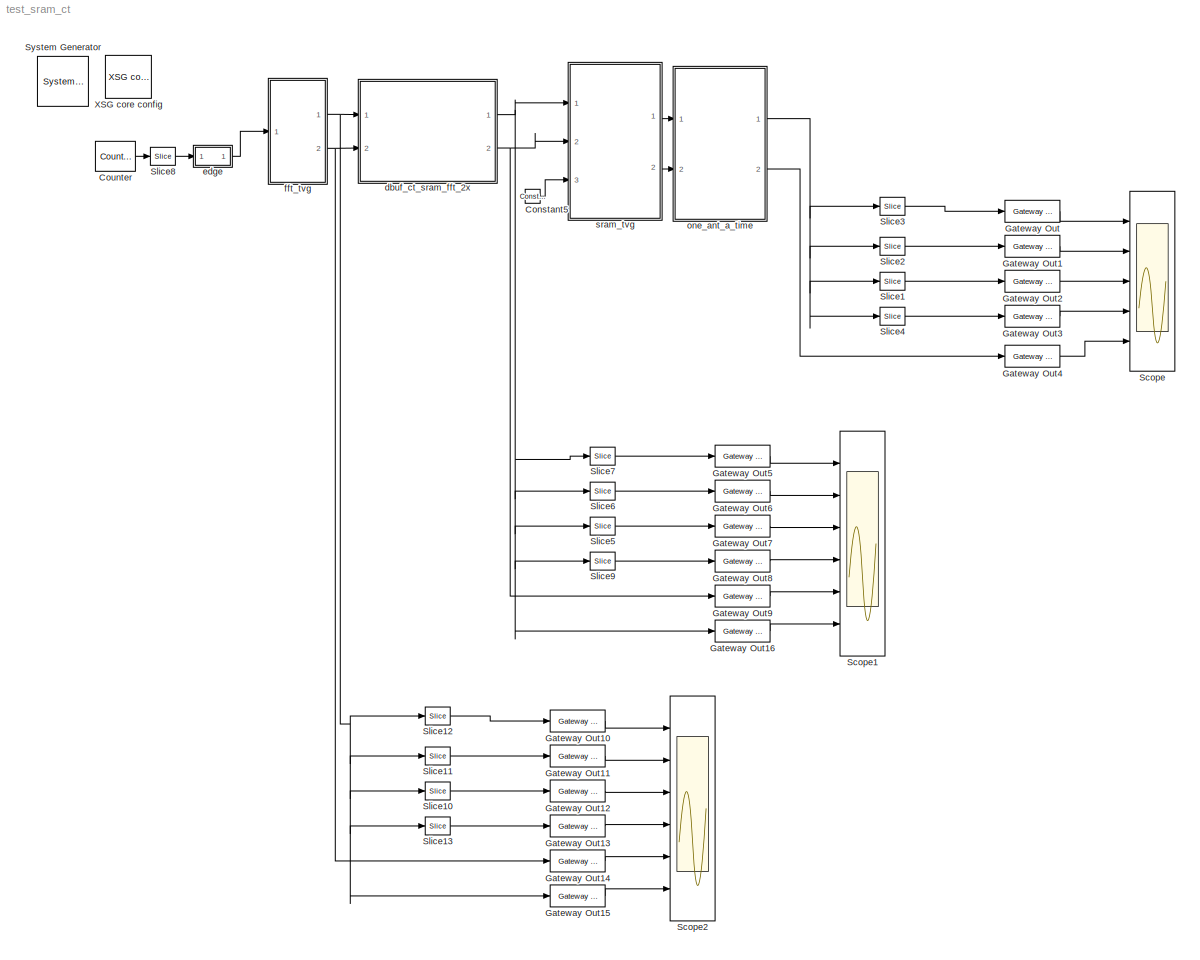
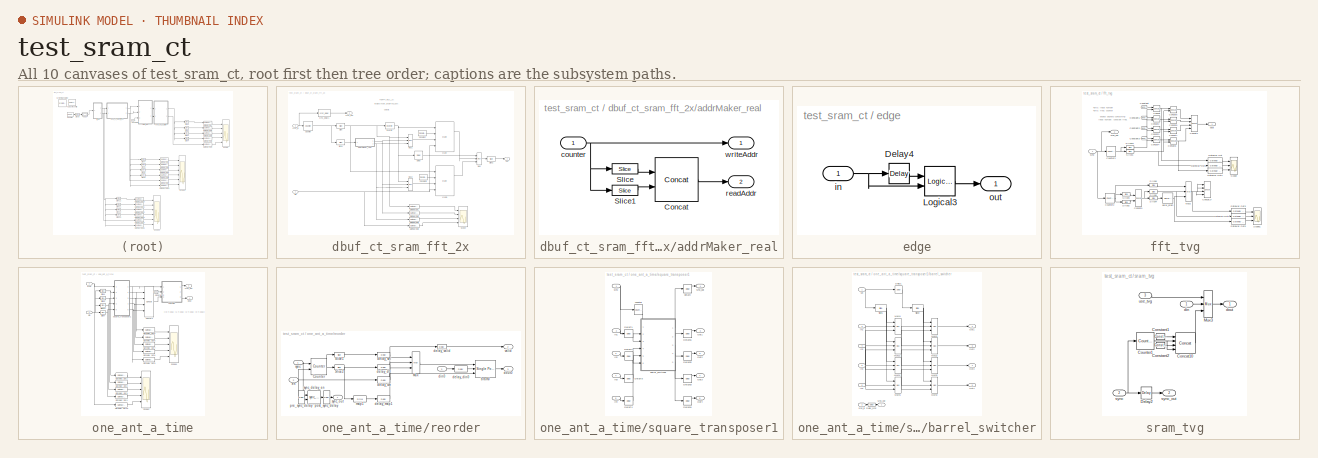
[diagram: thumbnail index - all 10 canvases of the model, root first then tree order]
MODEL test_sram_ct
KIND model
BLOCK [Reference]  System Generator  REF=xbsIndex_r4/ System Generator
  AttributesFormatString = System\\nGenerator
  FunctionWithSeparateData = off
  Ports = []
  RTWMemSecDataConstants = Inherit from model
  RTWMemSecDataInternal = Inherit from model
  RTWMemSecDataParameters = Inherit from model
  RTWMemSecFuncExecute = Inherit from model
  RTWMemSecFuncInitTerm = Inherit from model
  ShowPortLabels = FromPortIcon
  SourceBlock = xbsIndex_r4/ System Generator
  SourceType = Xilinx System Generator Block
  SystemSampleTime = -1
  Tag = genX
  UserData = DataTag0
  UserDataPersistent = on
  block_type = sysgen
  block_version = 10.1.3
  clock_wrapper = Clock Enables
  core_generation = According to Block Masks
  dbl_ovrd = According to Block Masks
  dcm_input_clock_period = 100
  deprecated_control = off
  directory = ./i_128w_2k_10_r306/sysgen
  eval_field = 0
  has_advanced_control = 0
  incr_netlist = off
  infoedit = System Generator
  package = ff1152
  part = xc2vp50
  run_coregen = off
  sg_icon_stat = 51,50,-1,-1,red,beige,0,07734,right
  sg_mask_display = fprintf('','COMMENT: begin icon graphics');\npatch([0 51 51 0 ],[0 0 50 50 ],[0.93 0.92 0.86]);\npatch([12 4 16 4 12 25 29 33 47 36 25 17 29 17 25 36 47 33 29 25 12 ],[5 13 25 37 45 45 41 45 45 34 45 37 25 13 5 16 5 5 9 5 5 ],[0.6 0.2 0.25]);\nplot([0 51 51 0 0 ],[0 0 50 50 0 ]);\nfprintf('','COMMENT: end icon graphics');\nfprintf('','COMMENT: begin icon text');\nfprintf('','COMMENT: end icon text...<+5ch>
  sggui_pos = -1,-1,-1,-1
  simulink_period = 1
  speed = -7
  synthesis_tool = XST
  sysclk_period = 5
  testbench = off
  trim_vbits = Everywhere in SubSystem
  xilinxfamily = virtex2p
BLOCK [Reference] Constant5  REF=xbsIndex_r4/Constant
  Ports = [0, 1]
  SourceBlock = xbsIndex_r4/Constant
  SourceType = Xilinx Constant Block Block
  arith_type = Boolean
  bin_pt = 0
  block_type = constant
  block_version = 10.1.3
  carry = CIN
  const = 0
  dbl_ovrd = off
  dsp48_infoedit = The use of this block for DSP48 instructions is deprecated.  Please use the Opmode block.
  equ = P=C
  explicit_period = on
  has_advanced_control = 0
  inp1 = P
  inp2 = PCIN>>17
  n_bits = 1
  opr = +
  opselect = C
  period = 1
  sg_icon_stat = 15,14,1,1,white,blue,0,72d575a1,right
  sg_mask_display = fprintf('','COMMENT: begin icon graphics');\npatch([0 55 55 0 ],[0 0 26 26 ],[0.77 0.82 0.91]);\npatch([20 16 22 16 20 27 29 31 38 32 26 22 28 22 26 32 38 31 29 27 20 ],[3 7 13 19 23 23 21 23 23 17 23 19 13 7 3 9 3 3 5 3 3 ],[0.98 0.96 0.92]);\nplot([0 55 55 0 0 ],[0 0 26 26 0 ]);\nfprintf('','COMMENT: end icon graphics');\nfprintf('','COMMENT: begin icon text');\ncolor('black');port_label('output...<+50ch>  <repeated x8 — deduplicated; at blocks: Constant5, Constant, Constant1, Constant2, Constant3>
  sggui_pos = 20,20,400,346
BLOCK [Reference] Counter  REF=xbsIndex_r4/Counter
  Ports = [0, 1]
  SourceBlock = xbsIndex_r4/Counter
  SourceType = Xilinx Counter Block
  arith_type = Unsigned
  bin_pt = 0
  block_type = counter
  block_version = 10.1.3
  cnt_by_val = 1
  cnt_to = Inf
  cnt_type = Free Running
  dbl_ovrd = off
  en = off
  explicit_period = on
  has_advanced_control = 0
  implementation = Fabric
  infoedit = Hardware notes: Free running counters are the least expensive in hardware.  A count limited counter is implemented by combining a counter with a comparator.
  load_pin = off
  n_bits = 13
  operation = Up
  period = 1
  rst = off
  sg_icon_stat = 40,30,1,1,white,blue,0,a170c862,right
  sg_mask_display = fprintf('','COMMENT: begin icon graphics');\npatch([0 60 60 0 ],[0 0 60 60 ],[0.77 0.82 0.91]);\npatch([14 4 18 4 14 30 34 38 55 42 29 20 35 20 29 42 55 38 34 30 14 ],[6 16 30 44 54 54 50 54 54 41 54 45 30 15 6 19 6 6 10 6 6 ],[0.98 0.96 0.92]);\nplot([0 60 60 0 0 ],[0 0 60 60 0 ]);\nfprintf('','COMMENT: end icon graphics');\nfprintf('','COMMENT: begin icon text');\ncolor('black');port_label('outp...<+54ch>
  sggui_pos = 20,20,348,619
  start_count = 0
  use_behavioral_HDL = off
  use_rpm = on
  xl_area = [0, 0, 0, 0, 0, 0, 0]
  xl_use_area = off
BLOCK [Reference] Gateway Out  REF=xbsIndex_r4/Gateway Out
  LOCs = {}
  Ports = [1, 1]
  SourceBlock = xbsIndex_r4/Gateway Out
  SourceType = Xilinx Gateway Out Block
  block_type = gatewayout
  block_version = 10.1.3
  has_advanced_control = 0
  hdl_port = off
  infoedit = Gateway out block.  Converts Xilinx fixed point inputs into ouputs of type Simulink integer, double, or fixed point.<P><P>Hardware notes:  In hardware these blocks become top level output ports or are discarded, depending on how they are configured.  <repeated x37 — deduplicated; at blocks: Gateway Out, Gateway Out1, Gateway Out10, Gateway Out11, Gateway Out12, Gateway Out13, Gateway Out14, Gateway Out15, Gateway Out16, Gateway Out2, Gateway Out3, Gateway Out4, Gateway Out5, Gateway Out6, Gateway Out7, Gateway Out8, +1 more>
  locs_specified = off
  sg_icon_stat = 55,22,1,1,white,grey,0,b3a044a9,right
  sg_mask_display = fprintf('','COMMENT: begin icon graphics');\npatch([0 55 55 0 ],[0 0 22 22 ],[0.88 0.88 0.88]);\npatch([22 18 23 18 22 28 30 32 38 33 28 25 31 25 28 33 38 32 30 28 22 ],[2 6 11 16 20 20 18 20 20 15 20 17 11 5 2 7 2 2 4 2 2 ],[0.98 0.96 0.92]);\nplot([0 55 55 0 0 ],[0 0 22 22 0 ]);\nfprintf('','COMMENT: end icon graphics');\nfprintf('','COMMENT: begin icon text');\ncolor('black');port_label('input'...<+128ch>  <repeated x37 — deduplicated; at blocks: Gateway Out, Gateway Out1, Gateway Out10, Gateway Out11, Gateway Out12, Gateway Out13, Gateway Out14, Gateway Out15, Gateway Out16, Gateway Out2, Gateway Out3, Gateway Out4, Gateway Out5, Gateway Out6, Gateway Out7, Gateway Out8, +1 more>
  sggui_pos = -1,-1,-1,-1
  timing_constraint = None
  xl_area = [0, 0, 0, 0, 0, 0, 0]
  xl_use_area = off
BLOCK [Reference] Gateway Out1  REF=xbsIndex_r4/Gateway Out
  LOCs = {}
  Ports = [1, 1]
  SourceBlock = xbsIndex_r4/Gateway Out
  SourceType = Xilinx Gateway Out Block
  block_type = gatewayout
  block_version = 10.1.3
  has_advanced_control = 0
  hdl_port = off
  locs_specified = off
  sg_icon_stat = 55,22,1,1,white,grey,0,b3a044a9,right
  sggui_pos = -1,-1,-1,-1
  timing_constraint = None
  xl_area = [0, 0, 0, 0, 0, 0, 0]
  xl_use_area = off
BLOCK [Reference] Gateway Out10  REF=xbsIndex_r4/Gateway Out
  LOCs = {}
  Ports = [1, 1]
  SourceBlock = xbsIndex_r4/Gateway Out
  SourceType = Xilinx Gateway Out Block
  block_type = gatewayout
  block_version = 10.1.3
  has_advanced_control = 0
  hdl_port = off
  locs_specified = off
  sg_icon_stat = 55,22,1,1,white,grey,0,b3a044a9,right
  sggui_pos = -1,-1,-1,-1
  timing_constraint = None
  xl_area = [0, 0, 0, 0, 0, 0, 0]
  xl_use_area = off
BLOCK [Reference] Gateway Out11  REF=xbsIndex_r4/Gateway Out
  LOCs = {}
  Ports = [1, 1]
  SourceBlock = xbsIndex_r4/Gateway Out
  SourceType = Xilinx Gateway Out Block
  block_type = gatewayout
  block_version = 10.1.3
  has_advanced_control = 0
  hdl_port = off
  locs_specified = off
  sg_icon_stat = 55,22,1,1,white,grey,0,b3a044a9,right
  sggui_pos = -1,-1,-1,-1
  timing_constraint = None
  xl_area = [0, 0, 0, 0, 0, 0, 0]
  xl_use_area = off
BLOCK [Reference] Gateway Out12  REF=xbsIndex_r4/Gateway Out
  LOCs = {}
  Ports = [1, 1]
  SourceBlock = xbsIndex_r4/Gateway Out
  SourceType = Xilinx Gateway Out Block
  block_type = gatewayout
  block_version = 10.1.3
  has_advanced_control = 0
  hdl_port = off
  locs_specified = off
  sg_icon_stat = 55,22,1,1,white,grey,0,b3a044a9,right
  sggui_pos = -1,-1,-1,-1
  timing_constraint = None
  xl_area = [0, 0, 0, 0, 0, 0, 0]
  xl_use_area = off
BLOCK [Reference] Gateway Out13  REF=xbsIndex_r4/Gateway Out
  LOCs = {}
  Ports = [1, 1]
  SourceBlock = xbsIndex_r4/Gateway Out
  SourceType = Xilinx Gateway Out Block
  block_type = gatewayout
  block_version = 10.1.3
  has_advanced_control = 0
  hdl_port = off
  locs_specified = off
  sg_icon_stat = 55,22,1,1,white,grey,0,b3a044a9,right
  sggui_pos = -1,-1,-1,-1
  timing_constraint = None
  xl_area = [0, 0, 0, 0, 0, 0, 0]
  xl_use_area = off
BLOCK [Reference] Gateway Out14  REF=xbsIndex_r4/Gateway Out
  LOCs = {}
  Ports = [1, 1]
  SourceBlock = xbsIndex_r4/Gateway Out
  SourceType = Xilinx Gateway Out Block
  block_type = gatewayout
  block_version = 10.1.3
  has_advanced_control = 0
  hdl_port = off
  locs_specified = off
  sg_icon_stat = 55,22,1,1,white,grey,0,b3a044a9,right
  sggui_pos = -1,-1,-1,-1
  timing_constraint = None
  xl_area = [0, 0, 0, 0, 0, 0, 0]
  xl_use_area = off
BLOCK [Reference] Gateway Out15  REF=xbsIndex_r4/Gateway Out
  LOCs = {}
  Ports = [1, 1]
  SourceBlock = xbsIndex_r4/Gateway Out
  SourceType = Xilinx Gateway Out Block
  block_type = gatewayout
  block_version = 10.1.3
  has_advanced_control = 0
  hdl_port = off
  locs_specified = off
  sg_icon_stat = 55,22,1,1,white,grey,0,b3a044a9,right
  sggui_pos = -1,-1,-1,-1
  timing_constraint = None
  xl_area = [0, 0, 0, 0, 0, 0, 0]
  xl_use_area = off
BLOCK [Reference] Gateway Out16  REF=xbsIndex_r4/Gateway Out
  LOCs = {}
  Ports = [1, 1]
  SourceBlock = xbsIndex_r4/Gateway Out
  SourceType = Xilinx Gateway Out Block
  block_type = gatewayout
  block_version = 10.1.3
  has_advanced_control = 0
  hdl_port = off
  locs_specified = off
  sg_icon_stat = 55,22,1,1,white,grey,0,b3a044a9,right
  sggui_pos = -1,-1,-1,-1
  timing_constraint = None
  xl_area = [0, 0, 0, 0, 0, 0, 0]
  xl_use_area = off
BLOCK [Reference] Gateway Out2  REF=xbsIndex_r4/Gateway Out
  LOCs = {}
  Ports = [1, 1]
  SourceBlock = xbsIndex_r4/Gateway Out
  SourceType = Xilinx Gateway Out Block
  block_type = gatewayout
  block_version = 10.1.3
  has_advanced_control = 0
  hdl_port = off
  locs_specified = off
  sg_icon_stat = 55,22,1,1,white,grey,0,b3a044a9,right
  sggui_pos = -1,-1,-1,-1
  timing_constraint = None
  xl_area = [0, 0, 0, 0, 0, 0, 0]
  xl_use_area = off
BLOCK [Reference] Gateway Out3  REF=xbsIndex_r4/Gateway Out
  LOCs = {}
  Ports = [1, 1]
  SourceBlock = xbsIndex_r4/Gateway Out
  SourceType = Xilinx Gateway Out Block
  block_type = gatewayout
  block_version = 10.1.3
  has_advanced_control = 0
  hdl_port = off
  locs_specified = off
  sg_icon_stat = 55,22,1,1,white,grey,0,b3a044a9,right
  sggui_pos = -1,-1,-1,-1
  timing_constraint = None
  xl_area = [0, 0, 0, 0, 0, 0, 0]
  xl_use_area = off
BLOCK [Reference] Gateway Out4  REF=xbsIndex_r4/Gateway Out
  LOCs = {}
  Ports = [1, 1]
  SourceBlock = xbsIndex_r4/Gateway Out
  SourceType = Xilinx Gateway Out Block
  block_type = gatewayout
  block_version = 10.1.3
  has_advanced_control = 0
  hdl_port = off
  locs_specified = off
  sg_icon_stat = 55,22,1,1,white,grey,0,b3a044a9,right
  sggui_pos = -1,-1,-1,-1
  timing_constraint = None
  xl_area = [0, 0, 0, 0, 0, 0, 0]
  xl_use_area = off
BLOCK [Reference] Gateway Out5  REF=xbsIndex_r4/Gateway Out
  LOCs = {}
  Ports = [1, 1]
  SourceBlock = xbsIndex_r4/Gateway Out
  SourceType = Xilinx Gateway Out Block
  block_type = gatewayout
  block_version = 10.1.3
  has_advanced_control = 0
  hdl_port = off
  locs_specified = off
  sg_icon_stat = 55,22,1,1,white,grey,0,b3a044a9,right
  sggui_pos = -1,-1,-1,-1
  timing_constraint = None
  xl_area = [0, 0, 0, 0, 0, 0, 0]
  xl_use_area = off
BLOCK [Reference] Gateway Out6  REF=xbsIndex_r4/Gateway Out
  LOCs = {}
  Ports = [1, 1]
  SourceBlock = xbsIndex_r4/Gateway Out
  SourceType = Xilinx Gateway Out Block
  block_type = gatewayout
  block_version = 10.1.3
  has_advanced_control = 0
  hdl_port = off
  locs_specified = off
  sg_icon_stat = 55,22,1,1,white,grey,0,b3a044a9,right
  sggui_pos = -1,-1,-1,-1
  timing_constraint = None
  xl_area = [0, 0, 0, 0, 0, 0, 0]
  xl_use_area = off
BLOCK [Reference] Gateway Out7  REF=xbsIndex_r4/Gateway Out
  LOCs = {}
  Ports = [1, 1]
  SourceBlock = xbsIndex_r4/Gateway Out
  SourceType = Xilinx Gateway Out Block
  block_type = gatewayout
  block_version = 10.1.3
  has_advanced_control = 0
  hdl_port = off
  locs_specified = off
  sg_icon_stat = 55,22,1,1,white,grey,0,b3a044a9,right
  sggui_pos = -1,-1,-1,-1
  timing_constraint = None
  xl_area = [0, 0, 0, 0, 0, 0, 0]
  xl_use_area = off
BLOCK [Reference] Gateway Out8  REF=xbsIndex_r4/Gateway Out
  LOCs = {}
  Ports = [1, 1]
  SourceBlock = xbsIndex_r4/Gateway Out
  SourceType = Xilinx Gateway Out Block
  block_type = gatewayout
  block_version = 10.1.3
  has_advanced_control = 0
  hdl_port = off
  locs_specified = off
  sg_icon_stat = 55,22,1,1,white,grey,0,b3a044a9,right
  sggui_pos = -1,-1,-1,-1
  timing_constraint = None
  xl_area = [0, 0, 0, 0, 0, 0, 0]
  xl_use_area = off
BLOCK [Reference] Gateway Out9  REF=xbsIndex_r4/Gateway Out
  LOCs = {}
  Ports = [1, 1]
  SourceBlock = xbsIndex_r4/Gateway Out
  SourceType = Xilinx Gateway Out Block
  block_type = gatewayout
  block_version = 10.1.3
  has_advanced_control = 0
  hdl_port = off
  locs_specified = off
  sg_icon_stat = 55,22,1,1,white,grey,0,b3a044a9,right
  sggui_pos = -1,-1,-1,-1
  timing_constraint = None
  xl_area = [0, 0, 0, 0, 0, 0, 0]
  xl_use_area = off
BLOCK [Scope] Scope
  DataFormat = StructureWithTime
  Floating = off
  LimitDataPoints = off
  NumInputPorts = 5
  Ports = [5]
  SampleTime = 0
  SaveName = ScopeData1
  YMax = 130~120~130~120~1
  YMin = 10~0~10~0~-1
  ZoomMode = yonly
BLOCK [Scope] Scope1
  DataFormat = StructureWithTime
  Floating = off
  LimitDataPoints = off
  NumInputPorts = 6
  Ports = [6]
  SampleTime = 0
  SaveName = ScopeData3
  YMax = 1~1~1~1~1~1
  YMin = -1~-1~-1~-1~0~-1
  ZoomMode = yonly
BLOCK [Scope] Scope2
  DataFormat = StructureWithTime
  Floating = off
  LimitDataPoints = off
  NumInputPorts = 6
  Ports = [6]
  SampleTime = 0
  SaveName = ScopeData4
  YMax = 1~1~1~300~1~600
  YMin = -1~-1~0~0~-1~0
  ZoomMode = xonly
BLOCK [Reference] Slice1  REF=xbsIndex_r4/Slice
  Ports = [1, 1]
  SourceBlock = xbsIndex_r4/Slice
  SourceType = Xilinx Bit Slice Extractor Block
  base0 = LSB of Input
  base1 = MSB of Input
  bit0 = 8
  bit1 = 0
  block_type = slice
  block_version = 10.1.3
  boolean_output = off
  dbl_ovrd = off
  has_advanced_control = 0
  infoedit = Extracts a given range of bits from each input sample and presents it at the output.  The output type is ordinarily unsigned with binary point at zero, but can be Boolean when the slice is one bit wide.<P><P>Hardware notes: In hardware this block costs nothing.  <repeated x33 — deduplicated; at blocks: Slice1, Slice10, Slice11, Slice12, Slice13, Slice2, Slice3, Slice4, Slice5, Slice6, Slice7, Slice8, Slice9, Slice>
  mode = Lower Bit Location + Width
  nbits = 8
  sg_icon_stat = 25,18,1,1,white,blue,0,b1026674,right
  sg_mask_display = fprintf('','COMMENT: begin icon graphics');\npatch([0 60 60 0 ],[0 0 30 30 ],[0.77 0.82 0.91]);\npatch([22 17 24 17 22 30 32 34 42 35 29 24 30 24 29 35 42 34 32 30 22 ],[3 8 15 22 27 27 25 27 27 20 26 21 15 9 4 10 3 3 5 3 3 ],[0.98 0.96 0.92]);\nplot([0 60 60 0 0 ],[0 0 30 30 0 ]);\nfprintf('','COMMENT: end icon graphics');\nfprintf('','COMMENT: begin icon text');\ncolor('black');port_label('outpu...<+55ch>  <repeated x33 — deduplicated; at blocks: Slice1, Slice10, Slice11, Slice12, Slice13, Slice2, Slice3, Slice4, Slice5, Slice6, Slice7, Slice8, Slice9, Slice>
  sggui_pos = 20,20,449,376
BLOCK [Reference] Slice10  REF=xbsIndex_r4/Slice
  Ports = [1, 1]
  SourceBlock = xbsIndex_r4/Slice
  SourceType = Xilinx Bit Slice Extractor Block
  base0 = LSB of Input
  base1 = MSB of Input
  bit0 = 8
  bit1 = 0
  block_type = slice
  block_version = 10.1.3
  boolean_output = off
  dbl_ovrd = off
  has_advanced_control = 0
  mode = Lower Bit Location + Width
  nbits = 8
  sg_icon_stat = 25,18,1,1,white,blue,0,b1026674,right
  sggui_pos = 20,20,449,376
BLOCK [Reference] Slice11  REF=xbsIndex_r4/Slice
  Ports = [1, 1]
  SourceBlock = xbsIndex_r4/Slice
  SourceType = Xilinx Bit Slice Extractor Block
  base0 = LSB of Input
  base1 = MSB of Input
  bit0 = 16
  bit1 = 0
  block_type = slice
  block_version = 10.1.3
  boolean_output = off
  dbl_ovrd = off
  has_advanced_control = 0
  mode = Lower Bit Location + Width
  nbits = 8
  sg_icon_stat = 25,18,1,1,white,blue,0,b1026674,right
  sggui_pos = 20,20,449,376
BLOCK [Reference] Slice12  REF=xbsIndex_r4/Slice
  Ports = [1, 1]
  SourceBlock = xbsIndex_r4/Slice
  SourceType = Xilinx Bit Slice Extractor Block
  base0 = LSB of Input
  base1 = MSB of Input
  bit0 = 24
  bit1 = 0
  block_type = slice
  block_version = 10.1.3
  boolean_output = off
  dbl_ovrd = off
  has_advanced_control = 0
  mode = Lower Bit Location + Width
  nbits = 8
  sg_icon_stat = 25,18,1,1,white,blue,0,b1026674,right
  sggui_pos = 20,20,449,376
BLOCK [Reference] Slice13  REF=xbsIndex_r4/Slice
  Ports = [1, 1]
  SourceBlock = xbsIndex_r4/Slice
  SourceType = Xilinx Bit Slice Extractor Block
  base0 = LSB of Input
  base1 = MSB of Input
  bit0 = 0
  bit1 = 0
  block_type = slice
  block_version = 10.1.3
  boolean_output = off
  dbl_ovrd = off
  has_advanced_control = 0
  mode = Lower Bit Location + Width
  nbits = 8
  sg_icon_stat = 25,18,1,1,white,blue,0,b1026674,right
  sggui_pos = 20,20,449,376
BLOCK [Reference] Slice2  REF=xbsIndex_r4/Slice
  Ports = [1, 1]
  SourceBlock = xbsIndex_r4/Slice
  SourceType = Xilinx Bit Slice Extractor Block
  base0 = LSB of Input
  base1 = MSB of Input
  bit0 = 16
  bit1 = 0
  block_type = slice
  block_version = 10.1.3
  boolean_output = off
  dbl_ovrd = off
  has_advanced_control = 0
  mode = Lower Bit Location + Width
  nbits = 8
  sg_icon_stat = 25,18,1,1,white,blue,0,b1026674,right
  sggui_pos = 20,20,449,376
BLOCK [Reference] Slice3  REF=xbsIndex_r4/Slice
  Ports = [1, 1]
  SourceBlock = xbsIndex_r4/Slice
  SourceType = Xilinx Bit Slice Extractor Block
  base0 = LSB of Input
  base1 = MSB of Input
  bit0 = 24
  bit1 = 0
  block_type = slice
  block_version = 10.1.3
  boolean_output = off
  dbl_ovrd = off
  has_advanced_control = 0
  mode = Lower Bit Location + Width
  nbits = 8
  sg_icon_stat = 25,18,1,1,white,blue,0,b1026674,right
  sggui_pos = 20,20,449,376
BLOCK [Reference] Slice4  REF=xbsIndex_r4/Slice
  Ports = [1, 1]
  SourceBlock = xbsIndex_r4/Slice
  SourceType = Xilinx Bit Slice Extractor Block
  base0 = LSB of Input
  base1 = MSB of Input
  bit0 = 0
  bit1 = 0
  block_type = slice
  block_version = 10.1.3
  boolean_output = off
  dbl_ovrd = off
  has_advanced_control = 0
  mode = Lower Bit Location + Width
  nbits = 8
  sg_icon_stat = 25,18,1,1,white,blue,0,b1026674,right
  sggui_pos = 20,20,449,376
BLOCK [Reference] Slice5  REF=xbsIndex_r4/Slice
  Ports = [1, 1]
  SourceBlock = xbsIndex_r4/Slice
  SourceType = Xilinx Bit Slice Extractor Block
  base0 = LSB of Input
  base1 = MSB of Input
  bit0 = 8
  bit1 = 0
  block_type = slice
  block_version = 10.1.3
  boolean_output = off
  dbl_ovrd = off
  has_advanced_control = 0
  mode = Lower Bit Location + Width
  nbits = 8
  sg_icon_stat = 25,18,1,1,white,blue,0,b1026674,right
  sggui_pos = 20,20,449,376
BLOCK [Reference] Slice6  REF=xbsIndex_r4/Slice
  Ports = [1, 1]
  SourceBlock = xbsIndex_r4/Slice
  SourceType = Xilinx Bit Slice Extractor Block
  base0 = LSB of Input
  base1 = MSB of Input
  bit0 = 16
  bit1 = 0
  block_type = slice
  block_version = 10.1.3
  boolean_output = off
  dbl_ovrd = off
  has_advanced_control = 0
  mode = Lower Bit Location + Width
  nbits = 8
  sg_icon_stat = 25,18,1,1,white,blue,0,b1026674,right
  sggui_pos = 20,20,449,376
BLOCK [Reference] Slice7  REF=xbsIndex_r4/Slice
  Ports = [1, 1]
  SourceBlock = xbsIndex_r4/Slice
  SourceType = Xilinx Bit Slice Extractor Block
  base0 = LSB of Input
  base1 = MSB of Input
  bit0 = 24
  bit1 = 0
  block_type = slice
  block_version = 10.1.3
  boolean_output = off
  dbl_ovrd = off
  has_advanced_control = 0
  mode = Lower Bit Location + Width
  nbits = 8
  sg_icon_stat = 25,18,1,1,white,blue,0,b1026674,right
  sggui_pos = 20,20,449,376
BLOCK [Reference] Slice8  REF=xbsIndex_r4/Slice
  Ports = [1, 1]
  SourceBlock = xbsIndex_r4/Slice
  SourceType = Xilinx Bit Slice Extractor Block
  base0 = LSB of Input
  base1 = MSB of Input
  bit0 = 19
  bit1 = 0
  block_type = slice
  block_version = 10.1.3
  boolean_output = on
  dbl_ovrd = off
  has_advanced_control = 0
  mode = Upper Bit Location + Width
  nbits = 1
  sg_icon_stat = 25,18,1,1,white,blue,0,b1026674,right
  sggui_pos = 20,20,449,376
BLOCK [Reference] Slice9  REF=xbsIndex_r4/Slice
  Ports = [1, 1]
  SourceBlock = xbsIndex_r4/Slice
  SourceType = Xilinx Bit Slice Extractor Block
  base0 = LSB of Input
  base1 = MSB of Input
  bit0 = 0
  bit1 = 0
  block_type = slice
  block_version = 10.1.3
  boolean_output = off
  dbl_ovrd = off
  has_advanced_control = 0
  mode = Lower Bit Location + Width
  nbits = 8
  sg_icon_stat = 25,18,1,1,white,blue,0,b1026674,right
  sggui_pos = 20,20,449,376
BLOCK [Reference] XSG core config  REF=xps_library/XSG core config  (lib defined in mdl_00b5cec29cd0, mdl_02ab6ecaa3d1, +5 more)
  BEE2_ctrl_clk_src = sys_clk
  BEE2_usr_clk_src = sys_clk
  CORR_clk_src = sys_clk
  FunctionWithSeparateData = off
  Ports = []
  ROACH_clk_src = arb_clk
  RTWMemSecDataConstants = Inherit from model
  RTWMemSecDataInternal = Inherit from model
  RTWMemSecDataParameters = Inherit from model
  RTWMemSecFuncExecute = Inherit from model
  RTWMemSecFuncInitTerm = Inherit from model
  ShowPortLabels = FromPortIcon
  SourceBlock = xps_library/XSG core config
  SourceType = xsg core config
  SystemSampleTime = -1
  Tag = xps:xsg
  clk_rate = 200
  clk_src = adc0_clk
  gpio_clk_bit_index = 0
  gpio_clk_io_group = iBOB:sma
  hw_sys = iBOB
  iBOB_clk_src = adc0_clk
  ibob_linux = off
  mpc_type = powerpc405
  sample_period = 1
  synthesis_tool = XST
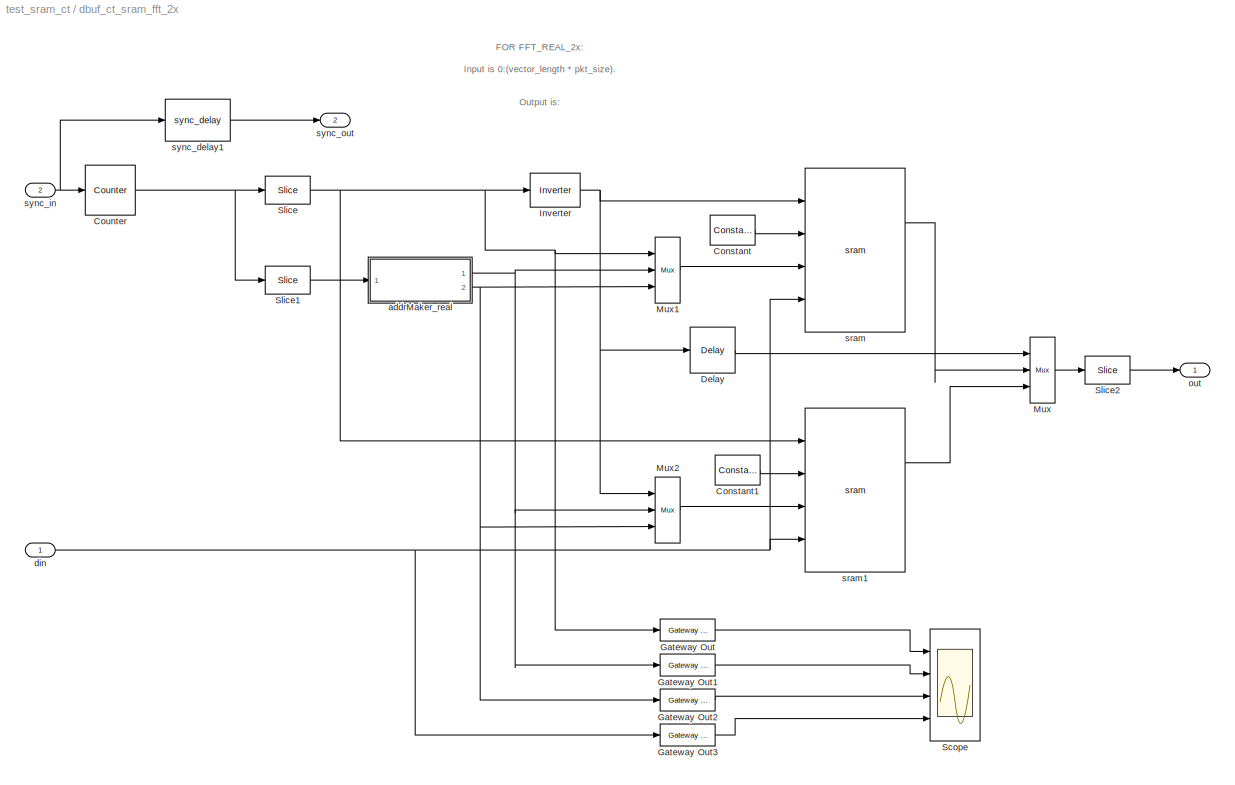
BLOCK [SubSystem] dbuf_ct_sram_fft_2x
  FunctionWithSeparateData = off
  MaskCallbackString = |
  MaskDescription = Sram transpose using double buffering method, maximum size is 256 spectrums by 2048 channels!!
  MaskEnableString = on,on
  MaskIconFrame = on
  MaskIconOpaque = on
  MaskIconRotate = none
  MaskIconUnits = autoscale
  MaskPromptString = Length of Spectrums (2^?) (FFT_real_2x vector length)|Number of Spectrums (2^?) (pkt size in 16bit complex dual-pol words)
  MaskStyleString = edit,edit
  MaskTabNameString = ,
  MaskToolTipString = on,on
  MaskTunableValueString = on,on
  MaskValueString = 6|3
  MaskVarAliasString = ,
  MaskVariables = length=@1;numSpecs=@2;
  MaskVisibilityString = on,on
  MinAlgLoopOccurrences = off
  Ports = [2, 2]
  RTWSystemCode = Auto
BLOCK [Reference] dbuf_ct_sram_fft_2x/Constant  REF=xbsIndex_r4/Constant
  Ports = [0, 1]
  SourceBlock = xbsIndex_r4/Constant
  SourceType = Xilinx Constant Block Block
  arith_type = Unsigned
  bin_pt = 0
  block_type = constant
  block_version = 10.1.3
  carry = CIN
  const = 15
  dbl_ovrd = off
  dsp48_infoedit = The use of this block for DSP48 instructions is deprecated.  Please use the Opmode block.
  equ = P=C
  explicit_period = on
  has_advanced_control = 0
  inp1 = P
  inp2 = PCIN>>17
  n_bits = 4
  opr = +
  opselect = C
  period = 1
  sg_icon_stat = 45,30,1,1,white,blue,0,f7427cc9,right
  sg_mask_display = fprintf('','COMMENT: begin icon graphics');\npatch([0 55 55 0 ],[0 0 26 26 ],[0.77 0.82 0.91]);\npatch([20 16 22 16 20 27 29 31 38 32 26 22 28 22 26 32 38 31 29 27 20 ],[3 7 13 19 23 23 21 23 23 17 23 19 13 7 3 9 3 3 5 3 3 ],[0.98 0.96 0.92]);\nplot([0 55 55 0 0 ],[0 0 26 26 0 ]);\nfprintf('','COMMENT: end icon graphics');\nfprintf('','COMMENT: begin icon text');\ncolor('black');port_label('output...<+51ch>
  sggui_pos = -1,-1,-1,-1
BLOCK [Reference] dbuf_ct_sram_fft_2x/Constant1  REF=xbsIndex_r4/Constant
  Ports = [0, 1]
  SourceBlock = xbsIndex_r4/Constant
  SourceType = Xilinx Constant Block Block
  arith_type = Unsigned
  bin_pt = 0
  block_type = constant
  block_version = 10.1.3
  carry = CIN
  const = 15
  dbl_ovrd = off
  dsp48_infoedit = The use of this block for DSP48 instructions is deprecated.  Please use the Opmode block.
  equ = P=C
  explicit_period = on
  has_advanced_control = 0
  inp1 = P
  inp2 = PCIN>>17
  n_bits = 4
  opr = +
  opselect = C
  period = 1
  sg_icon_stat = 45,30,1,1,white,blue,0,f7427cc9,right
  sg_mask_display = fprintf('','COMMENT: begin icon graphics');\npatch([0 55 55 0 ],[0 0 26 26 ],[0.77 0.82 0.91]);\npatch([20 16 22 16 20 27 29 31 38 32 26 22 28 22 26 32 38 31 29 27 20 ],[3 7 13 19 23 23 21 23 23 17 23 19 13 7 3 9 3 3 5 3 3 ],[0.98 0.96 0.92]);\nplot([0 55 55 0 0 ],[0 0 26 26 0 ]);\nfprintf('','COMMENT: end icon graphics');\nfprintf('','COMMENT: begin icon text');\ncolor('black');port_label('output...<+51ch>
  sggui_pos = -1,-1,-1,-1
BLOCK [Reference] dbuf_ct_sram_fft_2x/Counter  REF=xbsIndex_r4/Counter
  Ports = [1, 1]
  SourceBlock = xbsIndex_r4/Counter
  SourceType = Xilinx Counter Block
  arith_type = Unsigned
  bin_pt = 0
  block_type = counter
  block_version = 10.1.3
  cnt_by_val = 1
  cnt_to = Inf
  cnt_type = Free Running
  dbl_ovrd = off
  en = off
  explicit_period = off
  has_advanced_control = 0
  implementation = Fabric
  infoedit = Hardware notes: Free running counters are the least expensive in hardware.  A count limited counter is implemented by combining a counter with a comparator.
  load_pin = off
  n_bits = length+numSpecs+1
  operation = Up
  period = 1
  rst = on
  sg_icon_stat = 50,50,1,1,white,blue,0,300e9576,right
  sg_mask_display = fprintf('','COMMENT: begin icon graphics');\npatch([0 60 60 0 ],[0 0 60 60 ],[0.77 0.82 0.91]);\npatch([14 4 18 4 14 30 34 38 55 42 29 20 35 20 29 42 55 38 34 30 14 ],[6 16 30 44 54 54 50 54 54 41 54 45 30 15 6 19 6 6 10 6 6 ],[0.98 0.96 0.92]);\nplot([0 60 60 0 0 ],[0 0 60 60 0 ]);\nfprintf('','COMMENT: end icon graphics');\nfprintf('','COMMENT: begin icon text');\ncolor('black');port_label('inpu...<+99ch>  <repeated x5 — deduplicated; at blocks: Counter, Counter2, Counter3, counter, Counter1>
  sggui_pos = 20,20,348,619
  start_count = 0
  use_behavioral_HDL = off
  use_rpm = on
  xl_area = [0, 0, 0, 0, 0, 0, 0]
  xl_use_area = off
BLOCK [Reference] dbuf_ct_sram_fft_2x/Delay  REF=xbsIndex_r4/Delay
  Ports = [1, 1]
  SourceBlock = xbsIndex_r4/Delay
  SourceType = Xilinx Delay Block
  block_type = delay
  block_version = 10.1.3
  dbl_ovrd = off
  en = off
  has_advanced_control = 0
  infoedit = Hardware notes: A delay line is a chain, each link of which is an SRL16 followed by a flip-flop.
  latency = 4
  reg_retiming = off
  sg_icon_stat = 45,46,1,1,white,blue,0,c2217bc4,right
  sg_mask_display = fprintf('','COMMENT: begin icon graphics');\npatch([0 60 60 0 ],[0 0 56 56 ],[0.77 0.82 0.91]);\npatch([15 6 19 6 15 30 34 38 54 41 29 20 32 20 29 41 54 38 34 30 15 ],[6 15 28 41 50 50 46 50 50 37 49 40 28 16 7 19 6 6 10 6 6 ],[0.98 0.96 0.92]);\nplot([0 60 60 0 0 ],[0 0 56 56 0 ]);\nfprintf('','COMMENT: end icon graphics');\nfprintf('','COMMENT: begin icon text');\ncolor('black');disp('z^{-4}','t...<+55ch>
  sggui_pos = -1,-1,-1,-1
  xl_area = [0, 0, 0, 0, 0, 0, 0]
  xl_use_area = off
BLOCK [Reference] dbuf_ct_sram_fft_2x/Gateway Out  REF=xbsIndex_r4/Gateway Out
  LOCs = {}
  Ports = [1, 1]
  SourceBlock = xbsIndex_r4/Gateway Out
  SourceType = Xilinx Gateway Out Block
  block_type = gatewayout
  block_version = 10.1.3
  has_advanced_control = 0
  hdl_port = off
  locs_specified = off
  sg_icon_stat = 55,22,1,1,white,grey,0,b3a044a9,right
  sggui_pos = 20,20,336,386
  timing_constraint = None
  xl_area = [0, 0, 0, 0, 0, 0, 0]
  xl_use_area = off
BLOCK [Reference] dbuf_ct_sram_fft_2x/Gateway Out1  REF=xbsIndex_r4/Gateway Out
  LOCs = {}
  Ports = [1, 1]
  SourceBlock = xbsIndex_r4/Gateway Out
  SourceType = Xilinx Gateway Out Block
  block_type = gatewayout
  block_version = 10.1.3
  has_advanced_control = 0
  hdl_port = off
  locs_specified = off
  sg_icon_stat = 55,22,1,1,white,grey,0,b3a044a9,right
  sggui_pos = -1,-1,-1,-1
  timing_constraint = None
  xl_area = [0, 0, 0, 0, 0, 0, 0]
  xl_use_area = off
BLOCK [Reference] dbuf_ct_sram_fft_2x/Gateway Out2  REF=xbsIndex_r4/Gateway Out
  LOCs = {}
  Ports = [1, 1]
  SourceBlock = xbsIndex_r4/Gateway Out
  SourceType = Xilinx Gateway Out Block
  block_type = gatewayout
  block_version = 10.1.3
  has_advanced_control = 0
  hdl_port = off
  locs_specified = off
  sg_icon_stat = 55,22,1,1,white,grey,0,b3a044a9,right
  sggui_pos = -1,-1,-1,-1
  timing_constraint = None
  xl_area = [0, 0, 0, 0, 0, 0, 0]
  xl_use_area = off
BLOCK [Reference] dbuf_ct_sram_fft_2x/Gateway Out3  REF=xbsIndex_r4/Gateway Out
  LOCs = {}
  Ports = [1, 1]
  SourceBlock = xbsIndex_r4/Gateway Out
  SourceType = Xilinx Gateway Out Block
  block_type = gatewayout
  block_version = 10.1.3
  has_advanced_control = 0
  hdl_port = off
  locs_specified = off
  sg_icon_stat = 55,22,1,1,white,grey,0,b3a044a9,right
  sggui_pos = -1,-1,-1,-1
  timing_constraint = None
  xl_area = [0, 0, 0, 0, 0, 0, 0]
  xl_use_area = off
BLOCK [Reference] dbuf_ct_sram_fft_2x/Inverter  REF=xbsIndex_r4/Inverter
  Ports = [1, 1]
  SourceBlock = xbsIndex_r4/Inverter
  SourceType = Xilinx Inverter Block
  block_type = inv
  block_version = 10.1.3
  dbl_ovrd = off
  en = off
  has_advanced_control = 0
  infoedit = Bitwise logical negation (one's complement) operator.
  latency = 0
  sg_icon_stat = 50,34,1,1,white,blue,0,1ab4a85f,right
  sg_mask_display = fprintf('','COMMENT: begin icon graphics');\npatch([0 55 55 0 ],[0 0 58 58 ],[0.77 0.82 0.91]);\npatch([13 4 17 4 13 28 32 36 52 40 28 19 32 19 28 40 52 36 32 28 13 ],[7 16 29 42 51 51 47 51 51 39 51 42 29 16 7 19 7 7 11 7 7 ],[0.98 0.96 0.92]);\nplot([0 55 55 0 0 ],[0 0 58 58 0 ]);\nfprintf('','COMMENT: end icon graphics');\nfprintf('','COMMENT: begin icon text');\ncolor('black');disp('not');\nfp...<+37ch>
  sggui_pos = 20,20,348,251
  xl_area = [0, 0, 0, 0, 0, 0, 0]
  xl_use_area = off
BLOCK [Reference] dbuf_ct_sram_fft_2x/Mux  REF=xbsIndex_r4/Mux
  Ports = [3, 1]
  SourceBlock = xbsIndex_r4/Mux
  SourceType = Xilinx Bus Multiplexer Block
  arith_type = Signed  (2's comp)
  bin_pt = 2
  block_type = mux
  block_version = 10.1.3
  dbl_ovrd = off
  en = off
  has_advanced_control = 0
  inputs = 2
  latency = 0
  n_bits = 8
  overflow = Wrap
  precision = Full
  quantization = Truncate
  sg_icon_stat = 25,66,1,1,white,blue,3,613f58e1,right
  sg_mask_display = fprintf('','COMMENT: begin icon graphics');\npatch([0 45 45 0 ],[0 14.8571 89.1429 104 ],[0.77 0.82 0.91]);\npatch([10 3 14 3 10 22 25 28 41 31 21 14 25 14 21 31 41 28 25 22 10 ],[34 41 52 63 70 70 67 70 70 60 70 63 52 41 34 44 34 34 37 34 34 ],[0.98 0.96 0.92]);\nplot([0 45 45 0 0 ],[0 14.8571 89.1429 104 0 ]);\nfprintf('','COMMENT: end icon graphics');\nfprintf('','COMMENT: begin icon text');\nc...<+218ch>  <repeated x3 — deduplicated; at blocks: Mux, Mux1, Mux2>
  sggui_pos = -1,-1,-1,-1
  xl_area = [0, 0, 0, 0, 0, 0, 0]
  xl_use_area = off
BLOCK [Reference] dbuf_ct_sram_fft_2x/Mux1  REF=xbsIndex_r4/Mux
  Ports = [3, 1]
  SourceBlock = xbsIndex_r4/Mux
  SourceType = Xilinx Bus Multiplexer Block
  arith_type = Signed  (2's comp)
  bin_pt = 2
  block_type = mux
  block_version = 10.1.3
  dbl_ovrd = off
  en = off
  has_advanced_control = 0
  inputs = 2
  latency = 0
  n_bits = 8
  overflow = Wrap
  precision = Full
  quantization = Truncate
  sg_icon_stat = 25,66,1,1,white,blue,3,613f58e1,right
  sggui_pos = -1,-1,-1,-1
  xl_area = [0, 0, 0, 0, 0, 0, 0]
  xl_use_area = off
BLOCK [Reference] dbuf_ct_sram_fft_2x/Mux2  REF=xbsIndex_r4/Mux
  Ports = [3, 1]
  SourceBlock = xbsIndex_r4/Mux
  SourceType = Xilinx Bus Multiplexer Block
  arith_type = Signed  (2's comp)
  bin_pt = 2
  block_type = mux
  block_version = 10.1.3
  dbl_ovrd = off
  en = off
  has_advanced_control = 0
  inputs = 2
  latency = 0
  n_bits = 8
  overflow = Wrap
  precision = Full
  quantization = Truncate
  sg_icon_stat = 25,66,1,1,white,blue,3,613f58e1,right
  sggui_pos = -1,-1,-1,-1
  xl_area = [0, 0, 0, 0, 0, 0, 0]
  xl_use_area = off
BLOCK [Scope] dbuf_ct_sram_fft_2x/Scope
  DataFormat = StructureWithTime
  Floating = off
  LimitDataPoints = off
  NumInputPorts = 4
  Ports = [4]
  SampleTime = 0
  SaveName = ScopeData2
  YMax = 1~550~550~5.5e+008
  YMin = 0~0~0~0
  ZoomMode = xonly
BLOCK [Reference] dbuf_ct_sram_fft_2x/Slice  REF=xbsIndex_r4/Slice
  Ports = [1, 1]
  SourceBlock = xbsIndex_r4/Slice
  SourceType = Xilinx Bit Slice Extractor Block
  base0 = LSB of Input
  base1 = MSB of Input
  bit0 = 0
  bit1 = 0
  block_type = slice
  block_version = 10.1.3
  boolean_output = on
  dbl_ovrd = off
  has_advanced_control = 0
  mode = Upper Bit Location + Width
  nbits = 1
  sg_icon_stat = 45,28,1,1,white,blue,0,b1026674,right
  sggui_pos = 20,20,449,376
BLOCK [Reference] dbuf_ct_sram_fft_2x/Slice1  REF=xbsIndex_r4/Slice
  Ports = [1, 1]
  SourceBlock = xbsIndex_r4/Slice
  SourceType = Xilinx Bit Slice Extractor Block
  base0 = LSB of Input
  base1 = MSB of Input
  bit0 = 0
  bit1 = 0
  block_type = slice
  block_version = 10.1.3
  boolean_output = off
  dbl_ovrd = off
  has_advanced_control = 0
  mode = Lower Bit Location + Width
  nbits = length+numSpecs
  sg_icon_stat = 45,28,1,1,white,blue,0,b1026674,right
  sggui_pos = 20,20,449,376
BLOCK [Reference] dbuf_ct_sram_fft_2x/Slice2  REF=xbsIndex_r4/Slice
  Ports = [1, 1]
  SourceBlock = xbsIndex_r4/Slice
  SourceType = Xilinx Bit Slice Extractor Block
  base0 = LSB of Input
  base1 = MSB of Input
  bit0 = 0
  bit1 = 0
  block_type = slice
  block_version = 10.1.3
  boolean_output = off
  dbl_ovrd = off
  has_advanced_control = 0
  mode = Lower Bit Location + Width
  nbits = 32
  sg_icon_stat = 45,28,1,1,white,blue,0,b1026674,right
  sggui_pos = 20,20,449,376
BLOCK [SubSystem] dbuf_ct_sram_fft_2x/addrMaker_real
  FunctionWithSeparateData = off
  MaskCallbackString = |
  MaskEnableString = on,on
  MaskIconFrame = on
  MaskIconOpaque = on
  MaskIconRotate = none
  MaskIconUnits = autoscale
  MaskPromptString = Spectrum Length (2^?)|Number of Spectrums (2^?)
  MaskStyleString = edit,edit
  MaskTabNameString = ,
  MaskToolTipString = on,on
  MaskTunableValueString = on,on
  MaskValueString = length|numSpecs
  MaskVarAliasString = ,
  MaskVariables = length=@1;numSpecs=@2;
  MaskVisibilityString = on,on
  MinAlgLoopOccurrences = off
  Ports = [1, 2]
  RTWSystemCode = Auto
BLOCK [Reference] dbuf_ct_sram_fft_2x/addrMaker_real/Concat  REF=xbsIndex_r4/Concat
  Ports = [2, 1]
  SourceBlock = xbsIndex_r4/Concat
  SourceType = Xilinx Bus Concatenator Block
  block_type = concat
  block_version = 10.1.3
  dbl_ovrd = off
  has_advanced_control = 0
  infoedit = Concatenates two or more inputs.  Output will be cast to an unsigned value with the binary point at zero.
  num_inputs = 2
  sg_icon_stat = 50,51,1,1,white,blue,0,df1e5aba,right
  sg_mask_display = fprintf('','COMMENT: begin icon graphics');\npatch([0 60 60 0 ],[0 0 60 60 ],[0.77 0.82 0.91]);\npatch([14 4 18 4 14 30 34 38 55 42 29 20 35 20 29 42 55 38 34 30 14 ],[6 16 30 44 54 54 50 54 54 41 54 45 30 15 6 19 6 6 10 6 6 ],[0.98 0.96 0.92]);\nplot([0 60 60 0 0 ],[0 0 60 60 0 ]);\nfprintf('','COMMENT: end icon graphics');\nfprintf('','COMMENT: begin icon text');\ncolor('black');port_label('inpu...<+96ch>  <repeated x10 — deduplicated; at blocks: Concat, Concat2, Concat3, Concat4, Concat5, Concat6, Concat7, Concat8>
  sggui_pos = -1,-1,-1,-1
BLOCK [Reference] dbuf_ct_sram_fft_2x/addrMaker_real/Slice  REF=xbsIndex_r4/Slice
  Ports = [1, 1]
  SourceBlock = xbsIndex_r4/Slice
  SourceType = Xilinx Bit Slice Extractor Block
  base0 = LSB of Input
  base1 = MSB of Input
  bit0 = 0
  bit1 = 0
  block_type = slice
  block_version = 10.1.3
  boolean_output = off
  dbl_ovrd = off
  has_advanced_control = 0
  mode = Lower Bit Location + Width
  nbits = numSpecs+1
  sg_icon_stat = 30,12,1,1,white,blue,0,b1026674,right
  sggui_pos = 20,20,449,376
BLOCK [Reference] dbuf_ct_sram_fft_2x/addrMaker_real/Slice1  REF=xbsIndex_r4/Slice
  Ports = [1, 1]
  SourceBlock = xbsIndex_r4/Slice
  SourceType = Xilinx Bit Slice Extractor Block
  base0 = LSB of Input
  base1 = MSB of Input
  bit0 = 0
  bit1 = 0
  block_type = slice
  block_version = 10.1.3
  boolean_output = off
  dbl_ovrd = off
  has_advanced_control = 0
  mode = Upper Bit Location + Width
  nbits = length-1
  sg_icon_stat = 30,12,1,1,white,blue,0,b1026674,right
  sggui_pos = 20,20,449,376
BLOCK [Inport] dbuf_ct_sram_fft_2x/addrMaker_real/counter
  IconDisplay = Port number
  OutDataType = sfix(16)
  OutScaling = 2^0
BLOCK [Outport] dbuf_ct_sram_fft_2x/addrMaker_real/readAddr
  IconDisplay = Port number
  OutDataType = sfix(16)
  OutScaling = 2^0
  Port = 2
BLOCK [Outport] dbuf_ct_sram_fft_2x/addrMaker_real/writeAddr
  IconDisplay = Port number
  OutDataType = sfix(16)
  OutScaling = 2^0
BLOCK [Inport] dbuf_ct_sram_fft_2x/din
  IconDisplay = Port number
  OutDataType = sfix(16)
  OutScaling = 2^0
BLOCK [Outport] dbuf_ct_sram_fft_2x/out
  IconDisplay = Port number
  OutDataType = sfix(16)
  OutScaling = 2^0
BLOCK [Reference] dbuf_ct_sram_fft_2x/sram  REF=xps_library/sram  (lib defined in mdl_00b5cec29cd0, mdl_02ab6ecaa3d1, +5 more)
  FunctionWithSeparateData = off
  Ports = [4, 2]
  RTWMemSecDataConstants = Inherit from model
  RTWMemSecDataInternal = Inherit from model
  RTWMemSecDataParameters = Inherit from model
  RTWMemSecFuncExecute = Inherit from model
  RTWMemSecFuncInitTerm = Inherit from model
  ShowPortLabels = FromPortIcon
  SourceBlock = xps_library/sram
  SourceType = sram
  SystemSampleTime = -1
  Tag = xps:sram
  arith_type = Unsigned
  bin_pt = 0
  sample_period = 1
  sram = 0
  use_sim = off
BLOCK [Reference] dbuf_ct_sram_fft_2x/sram1  REF=xps_library/sram  (lib defined in mdl_00b5cec29cd0, mdl_02ab6ecaa3d1, +5 more)
  FunctionWithSeparateData = off
  Ports = [4, 2]
  RTWMemSecDataConstants = Inherit from model
  RTWMemSecDataInternal = Inherit from model
  RTWMemSecDataParameters = Inherit from model
  RTWMemSecFuncExecute = Inherit from model
  RTWMemSecFuncInitTerm = Inherit from model
  ShowPortLabels = FromPortIcon
  SourceBlock = xps_library/sram
  SourceType = sram
  SystemSampleTime = -1
  Tag = xps:sram
  arith_type = Unsigned
  bin_pt = 0
  sample_period = 1
  sram = 1
  use_sim = off
BLOCK [Reference] dbuf_ct_sram_fft_2x/sync_delay1  REF=casper_library/Delays/sync_delay  (lib defined in mdl_138b2fc3435f, mdl_4ed325b712b3, +2 more)
  DelayLen = 2^(length+numSpecs)+4
  FunctionWithSeparateData = off
  Ports = [1, 1]
  RTWMemSecDataConstants = Inherit from model
  RTWMemSecDataInternal = Inherit from model
  RTWMemSecDataParameters = Inherit from model
  RTWMemSecFuncExecute = Inherit from model
  RTWMemSecFuncInitTerm = Inherit from model
  ShowPortLabels = FromPortIcon
  SourceBlock = casper_library/Delays/sync_delay
  SourceType = sync_delay
  SystemSampleTime = -1
BLOCK [Inport] dbuf_ct_sram_fft_2x/sync_in
  IconDisplay = Port number
  OutDataType = sfix(16)
  OutScaling = 2^0
  Port = 2
BLOCK [Outport] dbuf_ct_sram_fft_2x/sync_out
  IconDisplay = Port number
  OutDataType = sfix(16)
  OutScaling = 2^0
  Port = 2
BLOCK [SubSystem] edge
  FunctionWithSeparateData = off
  MinAlgLoopOccurrences = off
  Ports = [1, 1]
  RTWSystemCode = Auto
BLOCK [Reference] edge/Delay4  REF=xbsIndex_r4/Delay
  Ports = [1, 1]
  SourceBlock = xbsIndex_r4/Delay
  SourceType = Xilinx Delay Block
  block_type = delay
  block_version = 10.1.3
  dbl_ovrd = off
  en = off
  has_advanced_control = 0
  infoedit = Hardware notes: A delay line is a chain, each link of which is an SRL16 followed by a flip-flop.
  latency = 1
  reg_retiming = off
  sg_icon_stat = 20,20,1,1,white,blue,0,fc531c0e,right
  sg_mask_display = fprintf('','COMMENT: begin icon graphics');\npatch([0 60 60 0 ],[0 0 56 56 ],[0.77 0.82 0.91]);\npatch([15 6 19 6 15 30 34 38 54 41 29 20 32 20 29 41 54 38 34 30 15 ],[6 15 28 41 50 50 46 50 50 37 49 40 28 16 7 19 6 6 10 6 6 ],[0.98 0.96 0.92]);\nplot([0 60 60 0 0 ],[0 0 56 56 0 ]);\nfprintf('','COMMENT: end icon graphics');\nfprintf('','COMMENT: begin icon text');\ncolor('black');disp('z^{-1}','t...<+55ch>  <repeated x5 — deduplicated; at blocks: Delay4, Delayb3, Delayf2, Delay1, Delay2>
  sggui_pos = -1,-1,-1,-1
  xl_area = [0, 0, 0, 0, 0, 0, 0]
  xl_use_area = off
BLOCK [Reference] edge/Logical3  REF=xbsIndex_r4/Logical
  Ports = [2, 1]
  SourceBlock = xbsIndex_r4/Logical
  SourceType = Xilinx Logical Block Block
  align_bp = on
  arith_type = Unsigned
  bin_pt = 2
  block_type = logical
  block_version = 10.1.3
  dbl_ovrd = off
  en = off
  has_advanced_control = 0
  inputs = 2
  latency = 0
  logical_function = XOR
  n_bits = 8
  precision = Full
  sg_icon_stat = 30,29,1,1,white,blue,0,54bbd59c,right
  sg_mask_display = fprintf('','COMMENT: begin icon graphics');\npatch([0 55 55 0 ],[0 0 60 60 ],[0.77 0.82 0.91]);\npatch([13 4 17 4 13 28 32 36 52 40 28 19 32 19 28 40 52 36 32 28 13 ],[8 17 30 43 52 52 48 52 52 40 52 43 30 17 8 20 8 8 12 8 8 ],[0.98 0.96 0.92]);\nplot([0 55 55 0 0 ],[0 0 60 60 0 ]);\nfprintf('','COMMENT: end icon graphics');\nfprintf('','COMMENT: begin icon text');\ncolor('black');disp('\\newlinex...<+76ch>
  sggui_pos = -1,-1,-1,-1
  xl_area = [0, 0, 0, 0, 0, 0, 0]
  xl_use_area = off
BLOCK [Inport] edge/in
  IconDisplay = Port number
  OutDataType = sfix(16)
  OutScaling = 2^0
BLOCK [Outport] edge/out
  IconDisplay = Port number
  OutDataType = sfix(16)
  OutScaling = 2^0
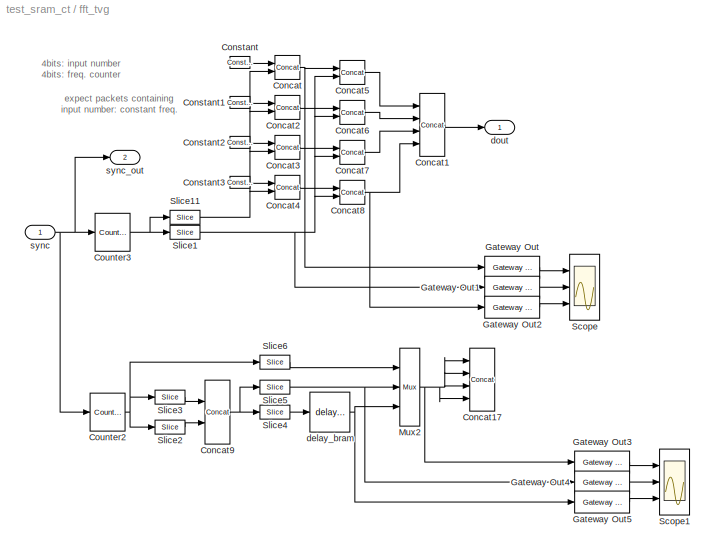
BLOCK [SubSystem] fft_tvg
  FunctionWithSeparateData = off
  MaskEnableString = on
  MaskIconFrame = on
  MaskIconOpaque = on
  MaskIconRotate = none
  MaskIconUnits = autoscale
  MaskPromptString = FFT_real_2x vector length (2^?)
  MaskStyleString = edit
  MaskToolTipString = on
  MaskTunableValueString = on
  MaskValueString = 6
  MaskVariables = length=@1;
  MaskVisibilityString = on
  MinAlgLoopOccurrences = off
  Ports = [1, 2]
  RTWSystemCode = Auto
BLOCK [Reference] fft_tvg/Concat  REF=xbsIndex_r4/Concat
  Ports = [2, 1]
  SourceBlock = xbsIndex_r4/Concat
  SourceType = Xilinx Bus Concatenator Block
  block_type = concat
  block_version = 10.1.3
  dbl_ovrd = off
  has_advanced_control = 0
  infoedit = Concatenates two or more inputs.  Output will be cast to an unsigned value with the binary point at zero.
  num_inputs = 2
  sg_icon_stat = 25,24,1,1,white,blue,0,df1e5aba,right
  sggui_pos = -1,-1,-1,-1
BLOCK [Reference] fft_tvg/Concat1  REF=xbsIndex_r4/Concat
  Ports = [4, 1]
  SourceBlock = xbsIndex_r4/Concat
  SourceType = Xilinx Bus Concatenator Block
  block_type = concat
  block_version = 10.1.3
  dbl_ovrd = off
  has_advanced_control = 0
  infoedit = Concatenates two or more inputs.  Output will be cast to an unsigned value with the binary point at zero.
  num_inputs = 4
  sg_icon_stat = 25,63,1,1,white,blue,0,ad63c393,right
  sg_mask_display = fprintf('','COMMENT: begin icon graphics');\npatch([0 25 25 0 ],[0 0 63 63 ],[0.77 0.82 0.91]);\npatch([6 2 8 2 6 13 15 17 24 18 13 9 14 9 13 18 24 17 15 13 6 ],[22 26 32 38 42 42 40 42 42 36 41 37 32 27 23 28 22 22 24 22 22 ],[0.98 0.96 0.92]);\nplot([0 25 25 0 0 ],[0 0 63 63 0 ]);\nfprintf('','COMMENT: end icon graphics');\nfprintf('','COMMENT: begin icon text');\ncolor('black');port_label('inpu...<+96ch>
  sggui_pos = 20,20,336,165
BLOCK [Reference] fft_tvg/Concat17  REF=xbsIndex_r4/Concat
  Ports = [4, 1]
  SourceBlock = xbsIndex_r4/Concat
  SourceType = Xilinx Bus Concatenator Block
  block_type = concat
  block_version = 10.1.3
  dbl_ovrd = off
  has_advanced_control = 0
  infoedit = Concatenates two or more inputs.  Output will be cast to an unsigned value with the binary point at zero.
  num_inputs = 4
  sg_icon_stat = 25,63,1,1,white,blue,0,ad63c393,right
  sg_mask_display = fprintf('','COMMENT: begin icon graphics');\npatch([0 25 25 0 ],[0 0 63 63 ],[0.77 0.82 0.91]);\npatch([6 2 8 2 6 13 15 17 24 18 13 9 14 9 13 18 24 17 15 13 6 ],[22 26 32 38 42 42 40 42 42 36 41 37 32 27 23 28 22 22 24 22 22 ],[0.98 0.96 0.92]);\nplot([0 25 25 0 0 ],[0 0 63 63 0 ]);\nfprintf('','COMMENT: end icon graphics');\nfprintf('','COMMENT: begin icon text');\ncolor('black');port_label('inpu...<+96ch>
  sggui_pos = 20,20,336,165
BLOCK [Reference] fft_tvg/Concat2  REF=xbsIndex_r4/Concat
  Ports = [2, 1]
  SourceBlock = xbsIndex_r4/Concat
  SourceType = Xilinx Bus Concatenator Block
  block_type = concat
  block_version = 10.1.3
  dbl_ovrd = off
  has_advanced_control = 0
  infoedit = Concatenates two or more inputs.  Output will be cast to an unsigned value with the binary point at zero.
  num_inputs = 2
  sg_icon_stat = 25,24,1,1,white,blue,0,df1e5aba,right
  sggui_pos = -1,-1,-1,-1
BLOCK [Reference] fft_tvg/Concat3  REF=xbsIndex_r4/Concat
  Ports = [2, 1]
  SourceBlock = xbsIndex_r4/Concat
  SourceType = Xilinx Bus Concatenator Block
  block_type = concat
  block_version = 10.1.3
  dbl_ovrd = off
  has_advanced_control = 0
  infoedit = Concatenates two or more inputs.  Output will be cast to an unsigned value with the binary point at zero.
  num_inputs = 2
  sg_icon_stat = 25,24,1,1,white,blue,0,df1e5aba,right
  sggui_pos = -1,-1,-1,-1
BLOCK [Reference] fft_tvg/Concat4  REF=xbsIndex_r4/Concat
  Ports = [2, 1]
  SourceBlock = xbsIndex_r4/Concat
  SourceType = Xilinx Bus Concatenator Block
  block_type = concat
  block_version = 10.1.3
  dbl_ovrd = off
  has_advanced_control = 0
  infoedit = Concatenates two or more inputs.  Output will be cast to an unsigned value with the binary point at zero.
  num_inputs = 2
  sg_icon_stat = 25,24,1,1,white,blue,0,df1e5aba,right
  sggui_pos = -1,-1,-1,-1
BLOCK [Reference] fft_tvg/Concat5  REF=xbsIndex_r4/Concat
  Ports = [2, 1]
  SourceBlock = xbsIndex_r4/Concat
  SourceType = Xilinx Bus Concatenator Block
  block_type = concat
  block_version = 10.1.3
  dbl_ovrd = off
  has_advanced_control = 0
  infoedit = Concatenates two or more inputs.  Output will be cast to an unsigned value with the binary point at zero.
  num_inputs = 2
  sg_icon_stat = 25,24,1,1,white,blue,0,df1e5aba,right
  sggui_pos = -1,-1,-1,-1
BLOCK [Reference] fft_tvg/Concat6  REF=xbsIndex_r4/Concat
  Ports = [2, 1]
  SourceBlock = xbsIndex_r4/Concat
  SourceType = Xilinx Bus Concatenator Block
  block_type = concat
  block_version = 10.1.3
  dbl_ovrd = off
  has_advanced_control = 0
  infoedit = Concatenates two or more inputs.  Output will be cast to an unsigned value with the binary point at zero.
  num_inputs = 2
  sg_icon_stat = 25,24,1,1,white,blue,0,df1e5aba,right
  sggui_pos = -1,-1,-1,-1
BLOCK [Reference] fft_tvg/Concat7  REF=xbsIndex_r4/Concat
  Ports = [2, 1]
  SourceBlock = xbsIndex_r4/Concat
  SourceType = Xilinx Bus Concatenator Block
  block_type = concat
  block_version = 10.1.3
  dbl_ovrd = off
  has_advanced_control = 0
  infoedit = Concatenates two or more inputs.  Output will be cast to an unsigned value with the binary point at zero.
  num_inputs = 2
  sg_icon_stat = 25,24,1,1,white,blue,0,df1e5aba,right
  sggui_pos = -1,-1,-1,-1
BLOCK [Reference] fft_tvg/Concat8  REF=xbsIndex_r4/Concat
  Ports = [2, 1]
  SourceBlock = xbsIndex_r4/Concat
  SourceType = Xilinx Bus Concatenator Block
  block_type = concat
  block_version = 10.1.3
  dbl_ovrd = off
  has_advanced_control = 0
  infoedit = Concatenates two or more inputs.  Output will be cast to an unsigned value with the binary point at zero.
  num_inputs = 2
  sg_icon_stat = 25,24,1,1,white,blue,0,df1e5aba,right
  sggui_pos = -1,-1,-1,-1
BLOCK [Reference] fft_tvg/Concat9  REF=xbsIndex_r4/Concat
  Ports = [2, 1]
  SourceBlock = xbsIndex_r4/Concat
  SourceType = Xilinx Bus Concatenator Block
  block_type = concat
  block_version = 10.1.3
  dbl_ovrd = off
  has_advanced_control = 0
  infoedit = Concatenates two or more inputs.  Output will be cast to an unsigned value with the binary point at zero.
  num_inputs = 2
  sg_icon_stat = 25,64,1,1,white,blue,0,df1e5aba,right
  sg_mask_display = fprintf('','COMMENT: begin icon graphics');\npatch([0 25 25 0 ],[0 0 64 64 ],[0.77 0.82 0.91]);\npatch([6 2 8 2 6 13 15 17 24 18 13 9 14 9 13 18 24 17 15 13 6 ],[22 26 32 38 42 42 40 42 42 36 41 37 32 27 23 28 22 22 24 22 22 ],[0.98 0.96 0.92]);\nplot([0 25 25 0 0 ],[0 0 64 64 0 ]);\nfprintf('','COMMENT: end icon graphics');\nfprintf('','COMMENT: begin icon text');\ncolor('black');port_label('inpu...<+96ch>
  sggui_pos = 20,20,336,165
BLOCK [Reference] fft_tvg/Constant  REF=xbsIndex_r4/Constant
  Ports = [0, 1]
  SourceBlock = xbsIndex_r4/Constant
  SourceType = Xilinx Constant Block Block
  arith_type = Unsigned
  bin_pt = 0
  block_type = constant
  block_version = 10.1.3
  carry = CIN
  const = 0
  dbl_ovrd = off
  dsp48_infoedit = The use of this block for DSP48 instructions is deprecated.  Please use the Opmode block.
  equ = P=C
  explicit_period = off
  has_advanced_control = 0
  inp1 = P
  inp2 = PCIN>>17
  n_bits = 3
  opr = +
  opselect = C
  period = 1
  sg_icon_stat = 20,12,1,1,white,blue,0,72d575a1,right
  sggui_pos = 20,20,400,346
BLOCK [Reference] fft_tvg/Constant1  REF=xbsIndex_r4/Constant
  Ports = [0, 1]
  SourceBlock = xbsIndex_r4/Constant
  SourceType = Xilinx Constant Block Block
  arith_type = Unsigned
  bin_pt = 0
  block_type = constant
  block_version = 10.1.3
  carry = CIN
  const = 1
  dbl_ovrd = off
  dsp48_infoedit = The use of this block for DSP48 instructions is deprecated.  Please use the Opmode block.
  equ = P=C
  explicit_period = off
  has_advanced_control = 0
  inp1 = P
  inp2 = PCIN>>17
  n_bits = 3
  opr = +
  opselect = C
  period = 1
  sg_icon_stat = 20,12,1,1,white,blue,0,06094819,right
  sggui_pos = 20,20,400,346
BLOCK [Reference] fft_tvg/Constant2  REF=xbsIndex_r4/Constant
  Ports = [0, 1]
  SourceBlock = xbsIndex_r4/Constant
  SourceType = Xilinx Constant Block Block
  arith_type = Unsigned
  bin_pt = 0
  block_type = constant
  block_version = 10.1.3
  carry = CIN
  const = 2
  dbl_ovrd = off
  dsp48_infoedit = The use of this block for DSP48 instructions is deprecated.  Please use the Opmode block.
  equ = P=C
  explicit_period = off
  has_advanced_control = 0
  inp1 = P
  inp2 = PCIN>>17
  n_bits = 3
  opr = +
  opselect = C
  period = 1
  sg_icon_stat = 20,12,1,1,white,blue,0,702e86fb,right
  sggui_pos = 20,20,400,346
BLOCK [Reference] fft_tvg/Constant3  REF=xbsIndex_r4/Constant
  Ports = [0, 1]
  SourceBlock = xbsIndex_r4/Constant
  SourceType = Xilinx Constant Block Block
  arith_type = Unsigned
  bin_pt = 0
  block_type = constant
  block_version = 10.1.3
  carry = CIN
  const = 3
  dbl_ovrd = off
  dsp48_infoedit = The use of this block for DSP48 instructions is deprecated.  Please use the Opmode block.
  equ = P=C
  explicit_period = off
  has_advanced_control = 0
  inp1 = P
  inp2 = PCIN>>17
  n_bits = 3
  opr = +
  opselect = C
  period = 1
  sg_icon_stat = 20,12,1,1,white,blue,0,bdb1da60,right
  sggui_pos = 20,20,400,346
BLOCK [Reference] fft_tvg/Counter2  REF=xbsIndex_r4/Counter
  Ports = [1, 1]
  SourceBlock = xbsIndex_r4/Counter
  SourceType = Xilinx Counter Block
  arith_type = Unsigned
  bin_pt = 0
  block_type = counter
  block_version = 10.1.3
  cnt_by_val = 1
  cnt_to = 1
  cnt_type = Free Running
  dbl_ovrd = off
  en = off
  explicit_period = off
  has_advanced_control = 0
  implementation = Fabric
  infoedit = Hardware notes: Free running counters are the least expensive in hardware.  A count limited counter is implemented by combining a counter with a comparator.
  load_pin = off
  n_bits = 17
  operation = Up
  period = 1
  rst = on
  sg_icon_stat = 35,38,1,1,white,blue,0,300e9576,right
  sggui_pos = 20,20,348,619
  start_count = 0
  use_behavioral_HDL = off
  use_rpm = on
  xl_area = [0, 0, 0, 0, 0, 0, 0]
  xl_use_area = off
BLOCK [Reference] fft_tvg/Counter3  REF=xbsIndex_r4/Counter
  Ports = [1, 1]
  SourceBlock = xbsIndex_r4/Counter
  SourceType = Xilinx Counter Block
  arith_type = Unsigned
  bin_pt = 0
  block_type = counter
  block_version = 10.1.3
  cnt_by_val = 1
  cnt_to = Inf
  cnt_type = Free Running
  dbl_ovrd = off
  en = off
  explicit_period = off
  has_advanced_control = 0
  implementation = Fabric
  infoedit = Hardware notes: Free running counters are the least expensive in hardware.  A count limited counter is implemented by combining a counter with a comparator.
  load_pin = off
  n_bits = length
  operation = Up
  period = 1
  rst = on
  sg_icon_stat = 35,38,1,1,white,blue,0,300e9576,right
  sggui_pos = 20,20,348,619
  start_count = 0
  use_behavioral_HDL = off
  use_rpm = on
  xl_area = [0, 0, 0, 0, 0, 0, 0]
  xl_use_area = off
BLOCK [Reference] fft_tvg/Gateway Out  REF=xbsIndex_r4/Gateway Out
  LOCs = {}
  Ports = [1, 1]
  SourceBlock = xbsIndex_r4/Gateway Out
  SourceType = Xilinx Gateway Out Block
  block_type = gatewayout
  block_version = 10.1.3
  has_advanced_control = 0
  hdl_port = off
  locs_specified = off
  sg_icon_stat = 55,22,1,1,white,grey,0,b3a044a9,right
  sggui_pos = 20,20,336,386
  timing_constraint = None
  xl_area = [0, 0, 0, 0, 0, 0, 0]
  xl_use_area = off
BLOCK [Reference] fft_tvg/Gateway Out1  REF=xbsIndex_r4/Gateway Out
  LOCs = {}
  Ports = [1, 1]
  SourceBlock = xbsIndex_r4/Gateway Out
  SourceType = Xilinx Gateway Out Block
  block_type = gatewayout
  block_version = 10.1.3
  has_advanced_control = 0
  hdl_port = off
  locs_specified = off
  sg_icon_stat = 55,22,1,1,white,grey,0,b3a044a9,right
  sggui_pos = 20,20,336,386
  timing_constraint = None
  xl_area = [0, 0, 0, 0, 0, 0, 0]
  xl_use_area = off
BLOCK [Reference] fft_tvg/Gateway Out2  REF=xbsIndex_r4/Gateway Out
  LOCs = {}
  Ports = [1, 1]
  SourceBlock = xbsIndex_r4/Gateway Out
  SourceType = Xilinx Gateway Out Block
  block_type = gatewayout
  block_version = 10.1.3
  has_advanced_control = 0
  hdl_port = off
  locs_specified = off
  sg_icon_stat = 55,22,1,1,white,grey,0,b3a044a9,right
  sggui_pos = 20,20,336,386
  timing_constraint = None
  xl_area = [0, 0, 0, 0, 0, 0, 0]
  xl_use_area = off
BLOCK [Reference] fft_tvg/Gateway Out3  REF=xbsIndex_r4/Gateway Out
  LOCs = {}
  Ports = [1, 1]
  SourceBlock = xbsIndex_r4/Gateway Out
  SourceType = Xilinx Gateway Out Block
  block_type = gatewayout
  block_version = 10.1.3
  has_advanced_control = 0
  hdl_port = off
  locs_specified = off
  sg_icon_stat = 55,22,1,1,white,grey,0,b3a044a9,right
  sggui_pos = 20,20,336,386
  timing_constraint = None
  xl_area = [0, 0, 0, 0, 0, 0, 0]
  xl_use_area = off
BLOCK [Reference] fft_tvg/Gateway Out4  REF=xbsIndex_r4/Gateway Out
  LOCs = {}
  Ports = [1, 1]
  SourceBlock = xbsIndex_r4/Gateway Out
  SourceType = Xilinx Gateway Out Block
  block_type = gatewayout
  block_version = 10.1.3
  has_advanced_control = 0
  hdl_port = off
  locs_specified = off
  sg_icon_stat = 55,22,1,1,white,grey,0,b3a044a9,right
  sggui_pos = 20,20,336,386
  timing_constraint = None
  xl_area = [0, 0, 0, 0, 0, 0, 0]
  xl_use_area = off
BLOCK [Reference] fft_tvg/Gateway Out5  REF=xbsIndex_r4/Gateway Out
  LOCs = {}
  Ports = [1, 1]
  SourceBlock = xbsIndex_r4/Gateway Out
  SourceType = Xilinx Gateway Out Block
  block_type = gatewayout
  block_version = 10.1.3
  has_advanced_control = 0
  hdl_port = off
  locs_specified = off
  sg_icon_stat = 55,22,1,1,white,grey,0,b3a044a9,right
  sggui_pos = 20,20,336,386
  timing_constraint = None
  xl_area = [0, 0, 0, 0, 0, 0, 0]
  xl_use_area = off
BLOCK [Reference] fft_tvg/Mux2  REF=xbsIndex_r4/Mux
  Ports = [3, 1]
  SourceBlock = xbsIndex_r4/Mux
  SourceType = Xilinx Bus Multiplexer Block
  arith_type = Signed  (2's comp)
  bin_pt = 2
  block_type = mux
  block_version = 10.1.3
  dbl_ovrd = off
  en = off
  has_advanced_control = 0
  inputs = 2
  latency = 0
  n_bits = 8
  overflow = Wrap
  precision = Full
  quantization = Truncate
  sg_icon_stat = 20,78,1,1,white,blue,3,613f58e1,right
  sg_mask_display = fprintf('','COMMENT: begin icon graphics');\npatch([0 20 20 0 ],[0 11.1429 66.8571 78 ],[0.77 0.82 0.91]);\npatch([4 1 6 1 4 9 10 11 17 13 9 6 11 6 9 13 17 11 10 9 4 ],[31 34 39 44 47 47 46 47 47 43 47 44 39 34 31 35 31 31 32 31 31 ],[0.98 0.96 0.92]);\nplot([0 20 20 0 0 ],[0 11.1429 66.8571 78 0 ]);\nfprintf('','COMMENT: end icon graphics');\nfprintf('','COMMENT: begin icon text');\ncolor('black'...<+206ch>
  sggui_pos = 20,20,348,303
  xl_area = [0, 0, 0, 0, 0, 0, 0]
  xl_use_area = off
BLOCK [Scope] fft_tvg/Scope
  DataFormat = StructureWithTime
  Floating = off
  LimitDataPoints = off
  NumInputPorts = 3
  Ports = [3]
  SampleTime = 0
  YMax = 1~15~127.5
  YMin = 0~0~95
  ZoomMode = xonly
BLOCK [Scope] fft_tvg/Scope1
  DataFormat = StructureWithTime
  Floating = off
  LimitDataPoints = off
  NumInputPorts = 3
  Ports = [3]
  SampleTime = 0
  SaveName = ScopeData7
  YMax = 1~15~275
  YMin = 0~3~0
  ZoomMode = xonly
BLOCK [Reference] fft_tvg/Slice1  REF=xbsIndex_r4/Slice
  Ports = [1, 1]
  SourceBlock = xbsIndex_r4/Slice
  SourceType = Xilinx Bit Slice Extractor Block
  base0 = LSB of Input
  base1 = MSB of Input
  bit0 = 0
  bit1 = -1
  block_type = slice
  block_version = 10.1.3
  boolean_output = off
  dbl_ovrd = off
  has_advanced_control = 0
  mode = Lower Bit Location + Width
  nbits = 4
  sg_icon_stat = 30,14,1,1,white,blue,0,b1026674,right
  sggui_pos = 20,20,449,376
BLOCK [Reference] fft_tvg/Slice11  REF=xbsIndex_r4/Slice
  Ports = [1, 1]
  SourceBlock = xbsIndex_r4/Slice
  SourceType = Xilinx Bit Slice Extractor Block
  base0 = LSB of Input
  base1 = MSB of Input
  bit0 = 0
  bit1 = 0
  block_type = slice
  block_version = 10.1.3
  boolean_output = off
  dbl_ovrd = off
  has_advanced_control = 0
  mode = Upper Bit Location + Width
  nbits = 1
  sg_icon_stat = 30,14,1,1,white,blue,0,b1026674,right
  sggui_pos = 20,20,449,376
BLOCK [Reference] fft_tvg/Slice2  REF=xbsIndex_r4/Slice
  Ports = [1, 1]
  SourceBlock = xbsIndex_r4/Slice
  SourceType = Xilinx Bit Slice Extractor Block
  base0 = LSB of Input
  base1 = MSB of Input
  bit0 = 0
  bit1 = -1
  block_type = slice
  block_version = 10.1.3
  boolean_output = off
  dbl_ovrd = off
  has_advanced_control = 0
  mode = Lower Bit Location + Width
  nbits = length-1
  sg_icon_stat = 30,14,1,1,white,blue,0,b1026674,right
  sggui_pos = 20,20,449,376
BLOCK [Reference] fft_tvg/Slice3  REF=xbsIndex_r4/Slice
  Ports = [1, 1]
  SourceBlock = xbsIndex_r4/Slice
  SourceType = Xilinx Bit Slice Extractor Block
  base0 = LSB of Input
  base1 = MSB of Input
  bit0 = length
  bit1 = 0
  block_type = slice
  block_version = 10.1.3
  boolean_output = off
  dbl_ovrd = off
  has_advanced_control = 0
  mode = Lower Bit Location + Width
  nbits = 17-length
  sg_icon_stat = 30,14,1,1,white,blue,0,b1026674,right
  sggui_pos = 20,20,449,376
BLOCK [Reference] fft_tvg/Slice4  REF=xbsIndex_r4/Slice
  Ports = [1, 1]
  SourceBlock = xbsIndex_r4/Slice
  SourceType = Xilinx Bit Slice Extractor Block
  base0 = LSB of Input
  base1 = MSB of Input
  bit0 = 0
  bit1 = -1
  block_type = slice
  block_version = 10.1.3
  boolean_output = off
  dbl_ovrd = off
  has_advanced_control = 0
  mode = Lower Bit Location + Width
  nbits = 8
  sg_icon_stat = 30,14,1,1,white,blue,0,b1026674,right
  sggui_pos = 20,20,449,376
BLOCK [Reference] fft_tvg/Slice5  REF=xbsIndex_r4/Slice
  Ports = [1, 1]
  SourceBlock = xbsIndex_r4/Slice
  SourceType = Xilinx Bit Slice Extractor Block
  base0 = LSB of Input
  base1 = MSB of Input
  bit0 = 0
  bit1 = 0
  block_type = slice
  block_version = 10.1.3
  boolean_output = off
  dbl_ovrd = off
  has_advanced_control = 0
  mode = Upper Bit Location + Width
  nbits = 8
  sg_icon_stat = 30,14,1,1,white,blue,0,b1026674,right
  sggui_pos = 20,20,449,376
BLOCK [Reference] fft_tvg/Slice6  REF=xbsIndex_r4/Slice
  Ports = [1, 1]
  SourceBlock = xbsIndex_r4/Slice
  SourceType = Xilinx Bit Slice Extractor Block
  base0 = LSB of Input
  base1 = MSB of Input
  bit0 = length-1
  bit1 = -1
  block_type = slice
  block_version = 10.1.3
  boolean_output = off
  dbl_ovrd = off
  has_advanced_control = 0
  mode = Lower Bit Location + Width
  nbits = 1
  sg_icon_stat = 30,14,1,1,white,blue,0,b1026674,right
  sggui_pos = 20,20,449,376
BLOCK [Reference] fft_tvg/delay_bram  REF=casper_library/Delays/delay_bram  (lib defined in mdl_138b2fc3435f, mdl_4ed325b712b3, +2 more)
  DelayLen = 2^(length-1)
  FunctionWithSeparateData = off
  Ports = [1, 1]
  RTWMemSecDataConstants = Inherit from model
  RTWMemSecDataInternal = Inherit from model
  RTWMemSecDataParameters = Inherit from model
  RTWMemSecFuncExecute = Inherit from model
  RTWMemSecFuncInitTerm = Inherit from model
  ShowPortLabels = FromPortIcon
  SourceBlock = casper_library/Delays/delay_bram
  SourceType = delay_bram
  SystemSampleTime = -1
  bram_latency = 3
  use_dsp48 = off
BLOCK [Outport] fft_tvg/dout
  IconDisplay = Port number
  OutDataType = sfix(16)
  OutScaling = 2^0
BLOCK [Inport] fft_tvg/sync
  IconDisplay = Port number
  OutDataType = sfix(16)
  OutScaling = 2^0
BLOCK [Outport] fft_tvg/sync_out
  IconDisplay = Port number
  OutDataType = sfix(16)
  OutScaling = 2^0
  Port = 2
BLOCK [SubSystem] one_ant_a_time
  FunctionWithSeparateData = off
  MinAlgLoopOccurrences = off
  Ports = [2, 2]
  RTWSystemCode = Auto
BLOCK [Reference] one_ant_a_time/Concat2  REF=xbsIndex_r4/Concat
  Ports = [4, 1]
  SourceBlock = xbsIndex_r4/Concat
  SourceType = Xilinx Bus Concatenator Block
  block_type = concat
  block_version = 10.1.3
  dbl_ovrd = off
  has_advanced_control = 0
  infoedit = Concatenates two or more inputs.  Output will be cast to an unsigned value with the binary point at zero.
  num_inputs = 4
  sg_icon_stat = 45,149,1,1,white,blue,0,ad63c393,right
  sggui_pos = 20,20,336,165
BLOCK [Reference] one_ant_a_time/Constant2  REF=xbsIndex_r4/Constant
  Ports = [0, 1]
  SourceBlock = xbsIndex_r4/Constant
  SourceType = Xilinx Constant Block Block
  arith_type = Boolean
  bin_pt = 0
  block_type = constant
  block_version = 10.1.3
  carry = CIN
  const = 1
  dbl_ovrd = off
  dsp48_infoedit = The use of this block for DSP48 instructions is deprecated.  Please use the Opmode block.
  equ = P=C
  explicit_period = on
  has_advanced_control = 0
  inp1 = P
  inp2 = PCIN>>17
  n_bits = 1
  opr = +
  opselect = C
  period = 1
  sg_icon_stat = 15,18,1,1,white,blue,0,06094819,right
  sggui_pos = -1,-1,-1,-1
BLOCK [Reference] one_ant_a_time/Gateway Out1  REF=xbsIndex_r4/Gateway Out
  LOCs = {}
  Ports = [1, 1]
  SourceBlock = xbsIndex_r4/Gateway Out
  SourceType = Xilinx Gateway Out Block
  block_type = gatewayout
  block_version = 10.1.3
  has_advanced_control = 0
  hdl_port = off
  locs_specified = off
  sg_icon_stat = 55,22,1,1,white,grey,0,b3a044a9,right
  sggui_pos = -1,-1,-1,-1
  timing_constraint = None
  xl_area = [0, 0, 0, 0, 0, 0, 0]
  xl_use_area = off
BLOCK [Reference] one_ant_a_time/Gateway Out10  REF=xbsIndex_r4/Gateway Out
  LOCs = {}
  Ports = [1, 1]
  SourceBlock = xbsIndex_r4/Gateway Out
  SourceType = Xilinx Gateway Out Block
  block_type = gatewayout
  block_version = 10.1.3
  has_advanced_control = 0
  hdl_port = off
  locs_specified = off
  sg_icon_stat = 55,22,1,1,white,grey,0,b3a044a9,right
  sggui_pos = -1,-1,-1,-1
  timing_constraint = None
  xl_area = [0, 0, 0, 0, 0, 0, 0]
  xl_use_area = off
BLOCK [Reference] one_ant_a_time/Gateway Out2  REF=xbsIndex_r4/Gateway Out
  LOCs = {}
  Ports = [1, 1]
  SourceBlock = xbsIndex_r4/Gateway Out
  SourceType = Xilinx Gateway Out Block
  block_type = gatewayout
  block_version = 10.1.3
  has_advanced_control = 0
  hdl_port = off
  locs_specified = off
  sg_icon_stat = 55,22,1,1,white,grey,0,b3a044a9,right
  sggui_pos = -1,-1,-1,-1
  timing_constraint = None
  xl_area = [0, 0, 0, 0, 0, 0, 0]
  xl_use_area = off
BLOCK [Reference] one_ant_a_time/Gateway Out3  REF=xbsIndex_r4/Gateway Out
  LOCs = {}
  Ports = [1, 1]
  SourceBlock = xbsIndex_r4/Gateway Out
  SourceType = Xilinx Gateway Out Block
  block_type = gatewayout
  block_version = 10.1.3
  has_advanced_control = 0
  hdl_port = off
  locs_specified = off
  sg_icon_stat = 55,22,1,1,white,grey,0,b3a044a9,right
  sggui_pos = -1,-1,-1,-1
  timing_constraint = None
  xl_area = [0, 0, 0, 0, 0, 0, 0]
  xl_use_area = off
BLOCK [Reference] one_ant_a_time/Gateway Out4  REF=xbsIndex_r4/Gateway Out
  LOCs = {}
  Ports = [1, 1]
  SourceBlock = xbsIndex_r4/Gateway Out
  SourceType = Xilinx Gateway Out Block
  block_type = gatewayout
  block_version = 10.1.3
  has_advanced_control = 0
  hdl_port = off
  locs_specified = off
  sg_icon_stat = 55,22,1,1,white,grey,0,b3a044a9,right
  sggui_pos = -1,-1,-1,-1
  timing_constraint = None
  xl_area = [0, 0, 0, 0, 0, 0, 0]
  xl_use_area = off
BLOCK [Reference] one_ant_a_time/Gateway Out5  REF=xbsIndex_r4/Gateway Out
  LOCs = {}
  Ports = [1, 1]
  SourceBlock = xbsIndex_r4/Gateway Out
  SourceType = Xilinx Gateway Out Block
  block_type = gatewayout
  block_version = 10.1.3
  has_advanced_control = 0
  hdl_port = off
  locs_specified = off
  sg_icon_stat = 55,22,1,1,white,grey,0,b3a044a9,right
  sggui_pos = -1,-1,-1,-1
  timing_constraint = None
  xl_area = [0, 0, 0, 0, 0, 0, 0]
  xl_use_area = off
BLOCK [Reference] one_ant_a_time/Gateway Out6  REF=xbsIndex_r4/Gateway Out
  LOCs = {}
  Ports = [1, 1]
  SourceBlock = xbsIndex_r4/Gateway Out
  SourceType = Xilinx Gateway Out Block
  block_type = gatewayout
  block_version = 10.1.3
  has_advanced_control = 0
  hdl_port = off
  locs_specified = off
  sg_icon_stat = 55,22,1,1,white,grey,0,b3a044a9,right
  sggui_pos = -1,-1,-1,-1
  timing_constraint = None
  xl_area = [0, 0, 0, 0, 0, 0, 0]
  xl_use_area = off
BLOCK [Reference] one_ant_a_time/Gateway Out7  REF=xbsIndex_r4/Gateway Out
  LOCs = {}
  Ports = [1, 1]
  SourceBlock = xbsIndex_r4/Gateway Out
  SourceType = Xilinx Gateway Out Block
  block_type = gatewayout
  block_version = 10.1.3
  has_advanced_control = 0
  hdl_port = off
  locs_specified = off
  sg_icon_stat = 55,22,1,1,white,grey,0,b3a044a9,right
  sggui_pos = -1,-1,-1,-1
  timing_constraint = None
  xl_area = [0, 0, 0, 0, 0, 0, 0]
  xl_use_area = off
BLOCK [Reference] one_ant_a_time/Gateway Out8  REF=xbsIndex_r4/Gateway Out
  LOCs = {}
  Ports = [1, 1]
  SourceBlock = xbsIndex_r4/Gateway Out
  SourceType = Xilinx Gateway Out Block
  block_type = gatewayout
  block_version = 10.1.3
  has_advanced_control = 0
  hdl_port = off
  locs_specified = off
  sg_icon_stat = 55,22,1,1,white,grey,0,b3a044a9,right
  sggui_pos = -1,-1,-1,-1
  timing_constraint = None
  xl_area = [0, 0, 0, 0, 0, 0, 0]
  xl_use_area = off
BLOCK [Reference] one_ant_a_time/Gateway Out9  REF=xbsIndex_r4/Gateway Out
  LOCs = {}
  Ports = [1, 1]
  SourceBlock = xbsIndex_r4/Gateway Out
  SourceType = Xilinx Gateway Out Block
  block_type = gatewayout
  block_version = 10.1.3
  has_advanced_control = 0
  hdl_port = off
  locs_specified = off
  sg_icon_stat = 55,22,1,1,white,grey,0,b3a044a9,right
  sggui_pos = -1,-1,-1,-1
  timing_constraint = None
  xl_area = [0, 0, 0, 0, 0, 0, 0]
  xl_use_area = off
BLOCK [Scope] one_ant_a_time/Scope1
  DataFormat = StructureWithTime
  Floating = off
  LimitDataPoints = off
  NumInputPorts = 5
  Ports = [5]
  SampleTime = 0
  SaveName = ScopeData5
  YMax = 1~1~1~1~1
  YMin = -1~-1~-1~0~0
  ZoomMode = xonly
BLOCK [Scope] one_ant_a_time/Scope2
  DataFormat = StructureWithTime
  Floating = off
  LimitDataPoints = off
  NumInputPorts = 5
  Ports = [5]
  SampleTime = 0
  SaveName = ScopeData6
  YMax = 1~1~1~1~1
  YMin = -1~-1~-1~0~0
  ZoomMode = xonly
BLOCK [Reference] one_ant_a_time/Slice1  REF=xbsIndex_r4/Slice
  Ports = [1, 1]
  SourceBlock = xbsIndex_r4/Slice
  SourceType = Xilinx Bit Slice Extractor Block
  base0 = LSB of Input
  base1 = MSB of Input
  bit0 = 24
  bit1 = 0
  block_type = slice
  block_version = 10.1.3
  boolean_output = off
  dbl_ovrd = off
  has_advanced_control = 0
  mode = Lower Bit Location + Width
  nbits = 8
  sg_icon_stat = 25,18,1,1,white,blue,0,b1026674,right
  sggui_pos = 20,20,449,376
BLOCK [Reference] one_ant_a_time/Slice11  REF=xbsIndex_r4/Slice
  Ports = [1, 1]
  SourceBlock = xbsIndex_r4/Slice
  SourceType = Xilinx Bit Slice Extractor Block
  base0 = LSB of Input
  base1 = MSB of Input
  bit0 = 8
  bit1 = 0
  block_type = slice
  block_version = 10.1.3
  boolean_output = off
  dbl_ovrd = off
  has_advanced_control = 0
  mode = Lower Bit Location + Width
  nbits = 8
  sg_icon_stat = 25,18,1,1,white,blue,0,b1026674,right
  sggui_pos = 20,20,449,376
BLOCK [Reference] one_ant_a_time/Slice2  REF=xbsIndex_r4/Slice
  Ports = [1, 1]
  SourceBlock = xbsIndex_r4/Slice
  SourceType = Xilinx Bit Slice Extractor Block
  base0 = LSB of Input
  base1 = MSB of Input
  bit0 = 16
  bit1 = 0
  block_type = slice
  block_version = 10.1.3
  boolean_output = off
  dbl_ovrd = off
  has_advanced_control = 0
  mode = Lower Bit Location + Width
  nbits = 8
  sg_icon_stat = 25,18,1,1,white,blue,0,b1026674,right
  sggui_pos = 20,20,449,376
BLOCK [Reference] one_ant_a_time/Slice7  REF=xbsIndex_r4/Slice
  Ports = [1, 1]
  SourceBlock = xbsIndex_r4/Slice
  SourceType = Xilinx Bit Slice Extractor Block
  base0 = LSB of Input
  base1 = MSB of Input
  bit0 = 0
  bit1 = 0
  block_type = slice
  block_version = 10.1.3
  boolean_output = off
  dbl_ovrd = off
  has_advanced_control = 0
  mode = Lower Bit Location + Width
  nbits = 8
  sg_icon_stat = 25,18,1,1,white,blue,0,b1026674,right
  sggui_pos = 20,20,449,376
BLOCK [Inport] one_ant_a_time/din
  IconDisplay = Port number
  OutDataType = sfix(16)
  OutScaling = 2^0
BLOCK [Outport] one_ant_a_time/dout
  IconDisplay = Port number
  OutDataType = sfix(16)
  OutScaling = 2^0
BLOCK [SubSystem] one_ant_a_time/reorder
  AncestorBlock = casper_library/Reorder/reorder
  AttributesFormatString = order=2
  FunctionWithSeparateData = off
  MaskCallbackString = ||||
  MaskEnableString = on,on,on,on,on
  MaskHelp = eval('xlWeb([getenv(''MLIB_ROOT''), ''<path>''])')
  MaskIconFrame = on
  MaskIconOpaque = on
  MaskIconRotate = none
  MaskIconUnits = autoscale
  MaskInitialization = reorder_init(gcb, ...\n    'map', map, ...\n    'n_inputs', n_inputs, ...\n    'bram_latency', bram_latency, ...\n    'map_latency', map_latency, ...\n    'double_buffer', double_buffer);
  MaskPromptString = Output Order:|Number of inputs|BRAM Latency|Map Latency|Double Buffer
  MaskSelfModifiable = on
  MaskStyleString = edit,edit,edit,edit,edit
  MaskTabNameString = ,,,,
  MaskToolTipString = on,on,on,on,on
  MaskTunableValueString = on,on,on,on,on
  MaskType = reorder
  MaskValueString = [0 4 8 12 1 5 9 13 2 6 10 14 3 7 11 15]|1|2|3|0
  MaskVarAliasString = ,,,,
  MaskVariables = map=@1;n_inputs=@2;bram_latency=@3;map_latency=@4;double_buffer=@5;
  MaskVisibilityString = on,on,on,on,on
  MinAlgLoopOccurrences = off
  Ports = [3, 3]
  RTWSystemCode = Auto
  UserData = DataTag1
  UserDataPersistent = on
BLOCK [Reference] one_ant_a_time/reorder/Counter  REF=xbsIndex_r4/Counter
  Ports = [2, 1]
  SourceBlock = xbsIndex_r4/Counter
  SourceType = Xilinx Counter Block
  arith_type = Unsigned
  bin_pt = 0
  block_type = counter
  block_version = 10.1.3
  cnt_by_val = 1
  cnt_to = 31
  cnt_type = Count Limited
  dbl_ovrd = off
  en = on
  explicit_period = on
  has_advanced_control = 0
  implementation = Fabric
  infoedit = Hardware notes: Free running counters are the least expensive in hardware.  A count limited counter is implemented by combining a counter with a comparator.
  load_pin = off
  n_bits = 5
  operation = Up
  period = 1
  rst = on
  sg_icon_stat = 50,53,1,1,white,blue,0,46c73e85,right
  sg_mask_display = fprintf('','COMMENT: begin icon graphics');\npatch([0 50 50 0 ],[0 0 53 53 ],[0.77 0.82 0.91]);\npatch([11 3 15 3 11 24 28 32 46 35 24 16 28 16 24 35 46 32 28 24 11 ],[7 15 27 39 47 47 43 47 47 36 47 39 27 15 7 18 7 7 11 7 7 ],[0.98 0.96 0.92]);\nplot([0 50 50 0 0 ],[0 0 53 53 0 ]);\nfprintf('','COMMENT: end icon graphics');\nfprintf('','COMMENT: begin icon text');\ncolor('black');port_label('inpu...<+143ch>
  sggui_pos = -1,-1,-1,-1
  start_count = 0
  use_behavioral_HDL = off
  use_rpm = off
  xl_area = [0,0,0,0,0,0,0]
  xl_use_area = off
BLOCK [Reference] one_ant_a_time/reorder/Mux  REF=xbsIndex_r4/Mux
  Ports = [3, 1]
  SourceBlock = xbsIndex_r4/Mux
  SourceType = Xilinx Bus Multiplexer Block
  arith_type = Unsigned
  bin_pt = 14
  block_type = mux
  block_version = 10.1.3
  dbl_ovrd = off
  en = off
  has_advanced_control = 0
  inputs = 2
  latency = 1
  n_bits = 16
  overflow = Wrap
  precision = Full
  quantization = Truncate
  sg_icon_stat = 25,68,1,1,white,blue,3,03f9c9b9,right
  sg_mask_display = fprintf('','COMMENT: begin icon graphics');\npatch([0 45 45 0 ],[0 14.8571 89.1429 104 ],[0.77 0.82 0.91]);\npatch([10 3 14 3 10 22 25 28 41 31 21 14 25 14 21 31 41 28 25 22 10 ],[34 41 52 63 70 70 67 70 70 60 70 63 52 41 34 44 34 34 37 34 34 ],[0.98 0.96 0.92]);\nplot([0 45 45 0 0 ],[0 14.8571 89.1429 104 0 ]);\nfprintf('','COMMENT: end icon graphics');\nfprintf('','COMMENT: begin icon text');\nc...<+226ch>  <repeated x10 — deduplicated; at blocks: Mux, Mux11, Mux12, Mux21, Mux22, Mux31, Mux32, Mux41, Mux42, Mux3>
  sggui_pos = -1,-1,-1,-1
  xl_area = [0,0,0,0,0,0,0]
  xl_use_area = off
BLOCK [Reference] one_ant_a_time/reorder/Slice1  REF=xbsIndex_r4/Slice
  Ports = [1, 1]
  SourceBlock = xbsIndex_r4/Slice
  SourceType = Xilinx Bit Slice Extractor Block
  base0 = LSB of Input
  base1 = MSB of Input
  bit0 = 0
  bit1 = 0
  block_type = slice
  block_version = 10.1.3
  boolean_output = off
  dbl_ovrd = off
  has_advanced_control = 0
  mode = Upper Bit Location + Width
  nbits = 1
  sg_icon_stat = 30,16,1,1,white,blue,0,b1026674,right
  sggui_pos = -1,-1,-1,-1
BLOCK [Reference] one_ant_a_time/reorder/Slice2  REF=xbsIndex_r4/Slice
  Ports = [1, 1]
  SourceBlock = xbsIndex_r4/Slice
  SourceType = Xilinx Bit Slice Extractor Block
  base0 = LSB of Input
  base1 = MSB of Input
  bit0 = 0
  bit1 = 0
  block_type = slice
  block_version = 10.1.3
  boolean_output = off
  dbl_ovrd = off
  has_advanced_control = 0
  mode = Lower Bit Location + Width
  nbits = 4
  sg_icon_stat = 30,16,1,1,white,blue,0,b1026674,right
  sggui_pos = -1,-1,-1,-1
BLOCK [Reference] one_ant_a_time/reorder/bram0  REF=xbsIndex_r4/Single Port RAM
  Ports = [3, 1]
  SourceBlock = xbsIndex_r4/Single Port RAM
  SourceType = Xilinx Single Port Random Access Memory Block
  block_type = spram
  block_version = 10.1.3
  dbl_ovrd = off
  depth = 16
  distributed_mem = Block RAM
  en = off
  has_advanced_control = 0
  initVector = sin(pi*(0:15)/16)
  init_reg = 0
  latency = 2
  optimize = Area
  rst = off
  sg_icon_stat = 65,54,1,1,white,blue,0,e5f9a5f3,right
  sg_mask_display = fprintf('','COMMENT: begin icon graphics');\npatch([0 60 60 0 ],[0 0 54 54 ],[0.77 0.82 0.91]);\npatch([16 7 20 7 16 30 34 38 53 41 29 21 35 21 29 41 53 38 34 30 16 ],[6 15 28 41 50 50 46 50 50 38 50 42 28 14 6 18 6 6 10 6 6 ],[0.98 0.96 0.92]);\nplot([0 60 60 0 0 ],[0 0 54 54 0 ]);\nfprintf('','COMMENT: end icon graphics');\nfprintf('','COMMENT: begin icon text');\ncolor('black');port_label('inpu...<+191ch>
  sggui_pos = 20,20,368,345
  use_rpm = on
  write_mode = Read Before Write
  xl_area = [0,0,0,0,0,0,0]
  xl_use_area = off
BLOCK [Reference] one_ant_a_time/reorder/delay_d0  REF=xbsIndex_r4/Delay
  Ports = [1, 1]
  SourceBlock = xbsIndex_r4/Delay
  SourceType = Xilinx Delay Block
  block_type = delay
  block_version = 10.1.3
  dbl_ovrd = off
  en = off
  has_advanced_control = 0
  infoedit = Hardware notes: A delay line is a chain, each link of which is an SRL16 followed by a flip-flop.
  latency = 3
  reg_retiming = off
  sg_icon_stat = 40,16,1,1,white,blue,0,eabd56db,right
  sg_mask_display = fprintf('','COMMENT: begin icon graphics');\npatch([0 60 60 0 ],[0 0 56 56 ],[0.77 0.82 0.91]);\npatch([15 6 19 6 15 30 34 38 54 41 29 20 32 20 29 41 54 38 34 30 15 ],[6 15 28 41 50 50 46 50 50 37 49 40 28 16 7 19 6 6 10 6 6 ],[0.98 0.96 0.92]);\nplot([0 60 60 0 0 ],[0 0 56 56 0 ]);\nfprintf('','COMMENT: end icon graphics');\nfprintf('','COMMENT: begin icon text');\ncolor('black');disp('z^{-3}','t...<+55ch>  <repeated x9 — deduplicated; at blocks: delay_d0, delay_sel, delay_valid, delay_we, post_sync_delay, pre_sync_delay, Delayb1, Delayf4, delay0>
  sggui_pos = -1,-1,-1,-1
  xl_area = [0,0,0,0,0,0,0]
  xl_use_area = off
BLOCK [Reference] one_ant_a_time/reorder/delay_din0  REF=xbsIndex_r4/Delay
  Ports = [1, 1]
  SourceBlock = xbsIndex_r4/Delay
  SourceType = Xilinx Delay Block
  block_type = delay
  block_version = 9.1.01
  dbl_ovrd = off
  en = off
  has_advanced_control = 0
  infoedit = Hardware notes: A delay line is a chain, each link of which is an SRL16 followed by a flip-flop.
  latency = 4
  reg_retiming = off
  sg_icon_stat = 40,20,1,1,white,blue,0,c2217bc4,right
  sg_mask_display = fprintf('','COMMENT: begin icon graphics');\npatch([0 60 60 0 ],[0 0 56 56 ],[0.77 0.82 0.91]);\npatch([15 6 19 6 15 30 34 38 54 41 29 20 32 20 29 41 54 38 34 30 15 ],[6 15 28 41 50 50 46 50 50 37 49 40 28 16 7 19 6 6 10 6 6 ],[0.98 0.96 0.92]);\nplot([0 60 60 0 0 ],[0 0 56 56 0 ]);\nfprintf('','COMMENT: end icon graphics');\nfprintf('','COMMENT: begin icon text');\ncolor('black');disp('z^{-4}','t...<+55ch>
  sggui_pos = -1,-1,-1,-1
  xl_area = [0, 0, 0, 0, 0, 0, 0]
  xl_use_area = off
BLOCK [Reference] one_ant_a_time/reorder/delay_map1  REF=xbsIndex_r4/Delay
  Ports = [1, 1]
  SourceBlock = xbsIndex_r4/Delay
  SourceType = Xilinx Delay Block
  block_type = delay
  block_version = 10.1.3
  dbl_ovrd = off
  en = off
  has_advanced_control = 0
  infoedit = Hardware notes: A delay line is a chain, each link of which is an SRL16 followed by a flip-flop.
  latency = 0*map_latency
  reg_retiming = off
  sg_icon_stat = 40,20,1,1,white,blue,0,d74ee26d,right
  sg_mask_display = fprintf('','COMMENT: begin icon graphics');\npatch([0 60 60 0 ],[0 0 56 56 ],[0.77 0.82 0.91]);\npatch([15 6 19 6 15 30 34 38 54 41 29 20 32 20 29 41 54 38 34 30 15 ],[6 15 28 41 50 50 46 50 50 37 49 40 28 16 7 19 6 6 10 6 6 ],[0.98 0.96 0.92]);\nplot([0 60 60 0 0 ],[0 0 56 56 0 ]);\nfprintf('','COMMENT: end icon graphics');\nfprintf('','COMMENT: begin icon text');\ncolor('black');disp('z^{-0}','t...<+55ch>  <repeated x3 — deduplicated; at blocks: delay_map1, Delayb4, Delayf1>
  sggui_pos = -1,-1,-1,-1
  xl_area = [0,0,0,0,0,0,0]
  xl_use_area = off
BLOCK [Reference] one_ant_a_time/reorder/delay_sel  REF=xbsIndex_r4/Delay
  Ports = [1, 1]
  SourceBlock = xbsIndex_r4/Delay
  SourceType = Xilinx Delay Block
  block_type = delay
  block_version = 10.1.3
  dbl_ovrd = off
  en = off
  has_advanced_control = 0
  infoedit = Hardware notes: A delay line is a chain, each link of which is an SRL16 followed by a flip-flop.
  latency = 3
  reg_retiming = off
  sg_icon_stat = 40,16,1,1,white,blue,0,eabd56db,right
  sggui_pos = -1,-1,-1,-1
  xl_area = [0,0,0,0,0,0,0]
  xl_use_area = off
BLOCK [Reference] one_ant_a_time/reorder/delay_valid  REF=xbsIndex_r4/Delay
  Ports = [1, 1]
  SourceBlock = xbsIndex_r4/Delay
  SourceType = Xilinx Delay Block
  block_type = delay
  block_version = 9.1.01
  dbl_ovrd = off
  en = off
  has_advanced_control = 0
  infoedit = Hardware notes: A delay line is a chain, each link of which is an SRL16 followed by a flip-flop.
  latency = 3
  reg_retiming = off
  sg_icon_stat = 30,14,1,1,white,blue,0,eabd56db,right
  sggui_pos = -1,-1,-1,-1
  xl_area = [0, 0, 0, 0, 0, 0, 0]
  xl_use_area = off
BLOCK [Reference] one_ant_a_time/reorder/delay_we  REF=xbsIndex_r4/Delay
  Ports = [1, 1]
  SourceBlock = xbsIndex_r4/Delay
  SourceType = Xilinx Delay Block
  block_type = delay
  block_version = 9.1.01
  dbl_ovrd = off
  en = off
  has_advanced_control = 0
  infoedit = Hardware notes: A delay line is a chain, each link of which is an SRL16 followed by a flip-flop.
  latency = 3
  reg_retiming = off
  sg_icon_stat = 40,20,1,1,white,blue,0,eabd56db,right
  sggui_pos = -1,-1,-1,-1
  xl_area = [0, 0, 0, 0, 0, 0, 0]
  xl_use_area = off
BLOCK [Inport] one_ant_a_time/reorder/din0
  IconDisplay = Port number
  OutDataType = sfix(16)
  OutScaling = 2^0
  Port = 3
BLOCK [Outport] one_ant_a_time/reorder/dout0
  IconDisplay = Port number
  OutDataType = sfix(16)
  OutScaling = 2^0
  Port = 3
BLOCK [Inport] one_ant_a_time/reorder/en
  IconDisplay = Port number
  OutDataType = sfix(16)
  OutScaling = 2^0
  Port = 2
BLOCK [Reference] one_ant_a_time/reorder/map1  REF=xbsIndex_r4/ROM
  Ports = [1, 1]
  SourceBlock = xbsIndex_r4/ROM
  SourceType = Xilinx Single Port Read-Only Memory Block
  arith_type = Unsigned
  bin_pt = 0
  block_type = sprom
  block_version = 10.1.3
  dbl_ovrd = off
  depth = 16
  distributed_mem = Distributed memory
  en = off
  has_advanced_control = 0
  initVector = map
  init_reg = 0
  latency = 3
  n_bits = 4
  optimize = Area
  rst = off
  sg_icon_stat = 40,20,1,1,white,blue,0,debe86a8,right
  sg_mask_display = fprintf('','COMMENT: begin icon graphics');\npatch([0 60 60 0 ],[0 0 56 56 ],[0.77 0.82 0.91]);\npatch([15 6 19 6 15 30 34 38 54 41 29 20 32 20 29 41 54 38 34 30 15 ],[6 15 28 41 50 50 46 50 50 37 49 40 28 16 7 19 6 6 10 6 6 ],[0.98 0.96 0.92]);\nplot([0 60 60 0 0 ],[0 0 56 56 0 ]);\nfprintf('','COMMENT: end icon graphics');\nfprintf('','COMMENT: begin icon text');\ncolor('black');port_label('inpu...<+101ch>
  sggui_pos = -1,-1,-1,-1
  use_rpm = on
  xl_area = [0,0,0,0,0,0,0]
  xl_use_area = off
BLOCK [Reference] one_ant_a_time/reorder/post_sync_delay  REF=xbsIndex_r4/Delay
  Ports = [1, 1]
  SourceBlock = xbsIndex_r4/Delay
  SourceType = Xilinx Delay Block
  block_type = delay
  block_version = 9.1.01
  dbl_ovrd = off
  en = off
  has_advanced_control = 0
  infoedit = Hardware notes: A delay line is a chain, each link of which is an SRL16 followed by a flip-flop.
  latency = 3
  reg_retiming = off
  sg_icon_stat = 20,42,1,1,white,blue,0,eabd56db,right
  sggui_pos = -1,-1,-1,-1
  xl_area = [0, 0, 0, 0, 0, 0, 0]
  xl_use_area = off
BLOCK [Reference] one_ant_a_time/reorder/pre_sync_delay  REF=xbsIndex_r4/Delay
  Ports = [1, 1]
  SourceBlock = xbsIndex_r4/Delay
  SourceType = Xilinx Delay Block
  block_type = delay
  block_version = 9.1.01
  dbl_ovrd = off
  en = off
  has_advanced_control = 0
  infoedit = Hardware notes: A delay line is a chain, each link of which is an SRL16 followed by a flip-flop.
  latency = 3
  reg_retiming = off
  sg_icon_stat = 20,42,1,1,white,blue,0,eabd56db,right
  sggui_pos = -1,-1,-1,-1
  xl_area = [0, 0, 0, 0, 0, 0, 0]
  xl_use_area = off
BLOCK [Inport] one_ant_a_time/reorder/sync
  IconDisplay = Port number
  OutDataType = sfix(16)
  OutScaling = 2^0
BLOCK [Reference] one_ant_a_time/reorder/sync_delay_en  REF=casper_library/Delays/sync_delay_en  (lib defined in mdl_138b2fc3435f, mdl_4ed325b712b3, +2 more)
  DelayLen = 16
  FunctionWithSeparateData = off
  Ports = [2, 1]
  RTWMemSecDataConstants = Inherit from model
  RTWMemSecDataInternal = Inherit from model
  RTWMemSecDataParameters = Inherit from model
  RTWMemSecFuncExecute = Inherit from model
  RTWMemSecFuncInitTerm = Inherit from model
  ShowPortLabels = FromPortIcon
  SourceBlock = casper_library/Delays/sync_delay_en
  SourceType = sync_delay_en
  SystemSampleTime = -1
BLOCK [Outport] one_ant_a_time/reorder/sync_out
  IconDisplay = Port number
  OutDataType = sfix(16)
  OutScaling = 2^0
BLOCK [Outport] one_ant_a_time/reorder/valid
  IconDisplay = Port number
  OutDataType = sfix(16)
  OutScaling = 2^0
  Port = 2
BLOCK [SubSystem] one_ant_a_time/square_transposer1
  AncestorBlock = casper_library/Reorder/square_transposer
  AttributesFormatString = n_inputs=2
  FunctionWithSeparateData = off
  MaskEnableString = on
  MaskHelp = eval('xlWeb([getenv(''MLIB_ROOT''), ''<path>''])')
  MaskIconFrame = on
  MaskIconOpaque = on
  MaskIconRotate = none
  MaskIconUnits = autoscale
  MaskInitialization = square_transposer_init(gcb,...\n    'n_inputs', n_inputs);
  MaskPromptString = Number of inputs (2^?):
  MaskSelfModifiable = on
  MaskStyleString = edit
  MaskToolTipString = on
  MaskTunableValueString = on
  MaskType = square_transposer
  MaskValueString = 2
  MaskVariables = n_inputs=@1;
  MaskVisibilityString = on
  MinAlgLoopOccurrences = off
  Ports = [5, 5]
  RTWSystemCode = Auto
  UserData = DataTag2
  UserDataPersistent = on
BLOCK [Reference] one_ant_a_time/square_transposer1/Delayb1  REF=xbsIndex_r4/Delay
  Ports = [1, 1]
  SourceBlock = xbsIndex_r4/Delay
  SourceType = Xilinx Delay Block
  block_type = delay
  block_version = 9.1.01
  dbl_ovrd = off
  en = off
  has_advanced_control = 0
  infoedit = Hardware notes: A delay line is a chain, each link of which is an SRL16 followed by a flip-flop.
  latency = 3
  reg_retiming = off
  sg_icon_stat = 30,30,1,1,white,blue,0,eabd56db,right
  sggui_pos = -1,-1,-1,-1
  xl_area = [0, 0, 0, 0, 0, 0, 0]
  xl_use_area = off
BLOCK [Reference] one_ant_a_time/square_transposer1/Delayb2  REF=xbsIndex_r4/Delay
  Ports = [1, 1]
  SourceBlock = xbsIndex_r4/Delay
  SourceType = Xilinx Delay Block
  block_type = delay
  block_version = 9.1.01
  dbl_ovrd = off
  en = off
  has_advanced_control = 0
  infoedit = Hardware notes: A delay line is a chain, each link of which is an SRL16 followed by a flip-flop.
  latency = 2
  reg_retiming = off
  sg_icon_stat = 30,30,1,1,white,blue,0,0a7a6cf1,right
  sg_mask_display = fprintf('','COMMENT: begin icon graphics');\npatch([0 60 60 0 ],[0 0 56 56 ],[0.77 0.82 0.91]);\npatch([15 6 19 6 15 30 34 38 54 41 29 20 32 20 29 41 54 38 34 30 15 ],[6 15 28 41 50 50 46 50 50 37 49 40 28 16 7 19 6 6 10 6 6 ],[0.98 0.96 0.92]);\nplot([0 60 60 0 0 ],[0 0 56 56 0 ]);\nfprintf('','COMMENT: end icon graphics');\nfprintf('','COMMENT: begin icon text');\ncolor('black');disp('z^{-2}','t...<+55ch>  <repeated x3 — deduplicated; at blocks: Delayb2, Delayf3, Delay_sync>
  sggui_pos = -1,-1,-1,-1
  xl_area = [0, 0, 0, 0, 0, 0, 0]
  xl_use_area = off
BLOCK [Reference] one_ant_a_time/square_transposer1/Delayb3  REF=xbsIndex_r4/Delay
  Ports = [1, 1]
  SourceBlock = xbsIndex_r4/Delay
  SourceType = Xilinx Delay Block
  block_type = delay
  block_version = 10.1.3
  dbl_ovrd = off
  en = off
  has_advanced_control = 0
  infoedit = Hardware notes: A delay line is a chain, each link of which is an SRL16 followed by a flip-flop.
  latency = 1
  reg_retiming = off
  sg_icon_stat = 30,30,1,1,white,blue,0,fc531c0e,right
  sggui_pos = -1,-1,-1,-1
  xl_area = [0,0,0,0,0,0,0]
  xl_use_area = off
BLOCK [Reference] one_ant_a_time/square_transposer1/Delayb4  REF=xbsIndex_r4/Delay
  Ports = [1, 1]
  SourceBlock = xbsIndex_r4/Delay
  SourceType = Xilinx Delay Block
  block_type = delay
  block_version = 10.1.3
  dbl_ovrd = off
  en = off
  has_advanced_control = 0
  infoedit = Hardware notes: A delay line is a chain, each link of which is an SRL16 followed by a flip-flop.
  latency = 0
  reg_retiming = off
  sg_icon_stat = 30,30,1,1,white,blue,0,d74ee26d,right
  sggui_pos = -1,-1,-1,-1
  xl_area = [0,0,0,0,0,0,0]
  xl_use_area = off
BLOCK [Reference] one_ant_a_time/square_transposer1/Delayf1  REF=xbsIndex_r4/Delay
  Ports = [1, 1]
  SourceBlock = xbsIndex_r4/Delay
  SourceType = Xilinx Delay Block
  block_type = delay
  block_version = 9.1.01
  dbl_ovrd = off
  en = off
  has_advanced_control = 0
  infoedit = Hardware notes: A delay line is a chain, each link of which is an SRL16 followed by a flip-flop.
  latency = 0
  reg_retiming = off
  sg_icon_stat = 30,30,1,1,white,blue,0,d74ee26d,right
  sggui_pos = -1,-1,-1,-1
  xl_area = [0, 0, 0, 0, 0, 0, 0]
  xl_use_area = off
BLOCK [Reference] one_ant_a_time/square_transposer1/Delayf2  REF=xbsIndex_r4/Delay
  Ports = [1, 1]
  SourceBlock = xbsIndex_r4/Delay
  SourceType = Xilinx Delay Block
  block_type = delay
  block_version = 9.1.01
  dbl_ovrd = off
  en = off
  has_advanced_control = 0
  infoedit = Hardware notes: A delay line is a chain, each link of which is an SRL16 followed by a flip-flop.
  latency = 1
  reg_retiming = off
  sg_icon_stat = 30,30,1,1,white,blue,0,fc531c0e,right
  sggui_pos = -1,-1,-1,-1
  xl_area = [0, 0, 0, 0, 0, 0, 0]
  xl_use_area = off
BLOCK [Reference] one_ant_a_time/square_transposer1/Delayf3  REF=xbsIndex_r4/Delay
  Ports = [1, 1]
  SourceBlock = xbsIndex_r4/Delay
  SourceType = Xilinx Delay Block
  block_type = delay
  block_version = 10.1.3
  dbl_ovrd = off
  en = off
  has_advanced_control = 0
  infoedit = Hardware notes: A delay line is a chain, each link of which is an SRL16 followed by a flip-flop.
  latency = 2
  reg_retiming = off
  sg_icon_stat = 30,30,1,1,white,blue,0,0a7a6cf1,right
  sggui_pos = -1,-1,-1,-1
  xl_area = [0,0,0,0,0,0,0]
  xl_use_area = off
BLOCK [Reference] one_ant_a_time/square_transposer1/Delayf4  REF=xbsIndex_r4/Delay
  Ports = [1, 1]
  SourceBlock = xbsIndex_r4/Delay
  SourceType = Xilinx Delay Block
  block_type = delay
  block_version = 10.1.3
  dbl_ovrd = off
  en = off
  has_advanced_control = 0
  infoedit = Hardware notes: A delay line is a chain, each link of which is an SRL16 followed by a flip-flop.
  latency = 3
  reg_retiming = off
  sg_icon_stat = 30,30,1,1,white,blue,0,eabd56db,right
  sggui_pos = -1,-1,-1,-1
  xl_area = [0,0,0,0,0,0,0]
  xl_use_area = off
BLOCK [Inport] one_ant_a_time/square_transposer1/In1
  IconDisplay = Port number
  OutDataType = sfix(16)
  OutScaling = 2^0
  Port = 2
BLOCK [Inport] one_ant_a_time/square_transposer1/In2
  IconDisplay = Port number
  OutDataType = sfix(16)
  OutScaling = 2^0
  Port = 3
BLOCK [Inport] one_ant_a_time/square_transposer1/In3
  IconDisplay = Port number
  Port = 4
BLOCK [Inport] one_ant_a_time/square_transposer1/In4
  IconDisplay = Port number
  Port = 5
BLOCK [Outport] one_ant_a_time/square_transposer1/Out1
  IconDisplay = Port number
  OutDataType = sfix(16)
  OutScaling = 2^0
  Port = 2
BLOCK [Outport] one_ant_a_time/square_transposer1/Out2
  IconDisplay = Port number
  OutDataType = sfix(16)
  OutScaling = 2^0
  Port = 3
BLOCK [Outport] one_ant_a_time/square_transposer1/Out3
  IconDisplay = Port number
  Port = 4
BLOCK [Outport] one_ant_a_time/square_transposer1/Out4
  IconDisplay = Port number
  Port = 5
BLOCK [SubSystem] one_ant_a_time/square_transposer1/barrel_switcher
  AncestorBlock = casper_library/Reorder/barrel_switcher
  AttributesFormatString = n_inputs=2
  FunctionWithSeparateData = off
  MaskDescription = Shifts input to right by amount specified on sel,\nwrapping around into higher order bits.
  MaskEnableString = on
  MaskHelp = eval('xlWeb([getenv(''MLIB_ROOT''), ''<path>''])')
  MaskIconFrame = on
  MaskIconOpaque = on
  MaskIconRotate = none
  MaskIconUnits = autoscale
  MaskInitialization = barrel_switcher_init(gcb,...\n    'n_inputs', n_inputs);
  MaskPromptString = Number of Inputs: (2^?)
  MaskSelfModifiable = on
  MaskStyleString = edit
  MaskToolTipString = on
  MaskTunableValueString = on
  MaskType = barrel_switcher
  MaskValueString = 2
  MaskVariables = n_inputs=@1;
  MaskVisibilityString = on
  MinAlgLoopOccurrences = off
  Ports = [6, 5]
  RTWSystemCode = Auto
  UserData = DataTag3
  UserDataPersistent = on
BLOCK [Reference] one_ant_a_time/square_transposer1/barrel_switcher/Delay1  REF=xbsIndex_r4/Delay
  Ports = [1, 1]
  SourceBlock = xbsIndex_r4/Delay
  SourceType = Xilinx Delay Block
  block_type = delay
  block_version = 10.1.3
  dbl_ovrd = off
  en = off
  has_advanced_control = 0
  infoedit = Hardware notes: A delay line is a chain, each link of which is an SRL16 followed by a flip-flop.
  latency = 1
  reg_retiming = off
  sg_icon_stat = 30,30,1,1,white,blue,0,fc531c0e,right
  sggui_pos = -1,-1,-1,-1
  xl_area = [0,0,0,0,0,0,0]
  xl_use_area = off
BLOCK [Reference] one_ant_a_time/square_transposer1/barrel_switcher/Delay_sync  REF=xbsIndex_r4/Delay
  Ports = [1, 1]
  SourceBlock = xbsIndex_r4/Delay
  SourceType = Xilinx Delay Block
  block_type = delay
  block_version = 9.1.01
  dbl_ovrd = off
  en = off
  has_advanced_control = 0
  infoedit = Hardware notes: A delay line is a chain, each link of which is an SRL16 followed by a flip-flop.
  latency = 2
  reg_retiming = off
  sg_icon_stat = 30,14,1,1,white,blue,0,0a7a6cf1,right
  sggui_pos = -1,-1,-1,-1
  xl_area = [0, 0, 0, 0, 0, 0, 0]
  xl_use_area = off
BLOCK [Inport] one_ant_a_time/square_transposer1/barrel_switcher/In1
  IconDisplay = Port number
  OutDataType = sfix(16)
  OutScaling = 2^0
  Port = 3
BLOCK [Inport] one_ant_a_time/square_transposer1/barrel_switcher/In2
  IconDisplay = Port number
  OutDataType = sfix(16)
  OutScaling = 2^0
  Port = 4
BLOCK [Inport] one_ant_a_time/square_transposer1/barrel_switcher/In3
  IconDisplay = Port number
  Port = 5
BLOCK [Inport] one_ant_a_time/square_transposer1/barrel_switcher/In4
  IconDisplay = Port number
  Port = 6
BLOCK [Reference] one_ant_a_time/square_transposer1/barrel_switcher/Mux11  REF=xbsIndex_r4/Mux
  Ports = [3, 1]
  SourceBlock = xbsIndex_r4/Mux
  SourceType = Xilinx Bus Multiplexer Block
  arith_type = Signed  (2's comp)
  bin_pt = 2
  block_type = mux
  block_version = 9.1.01
  dbl_ovrd = off
  en = off
  has_advanced_control = 0
  inputs = 2
  latency = 1
  n_bits = 8
  overflow = Wrap
  precision = Full
  quantization = Truncate
  sg_icon_stat = 25,66,1,1,white,blue,3,03f9c9b9,right
  sggui_pos = -1,-1,-1,-1
  xl_area = [0, 0, 0, 0, 0, 0, 0]
  xl_use_area = off
BLOCK [Reference] one_ant_a_time/square_transposer1/barrel_switcher/Mux12  REF=xbsIndex_r4/Mux
  Ports = [3, 1]
  SourceBlock = xbsIndex_r4/Mux
  SourceType = Xilinx Bus Multiplexer Block
  arith_type = Unsigned
  bin_pt = 14
  block_type = mux
  block_version = 10.1.3
  dbl_ovrd = off
  en = off
  has_advanced_control = 0
  inputs = 2
  latency = 1
  n_bits = 16
  overflow = Wrap
  precision = Full
  quantization = Truncate
  sg_icon_stat = 25,66,1,1,white,blue,3,03f9c9b9,right
  sggui_pos = -1,-1,-1,-1
  xl_area = [0,0,0,0,0,0,0]
  xl_use_area = off
BLOCK [Reference] one_ant_a_time/square_transposer1/barrel_switcher/Mux21  REF=xbsIndex_r4/Mux
  Ports = [3, 1]
  SourceBlock = xbsIndex_r4/Mux
  SourceType = Xilinx Bus Multiplexer Block
  arith_type = Signed  (2's comp)
  bin_pt = 2
  block_type = mux
  block_version = 9.1.01
  dbl_ovrd = off
  en = off
  has_advanced_control = 0
  inputs = 2
  latency = 1
  n_bits = 8
  overflow = Wrap
  precision = Full
  quantization = Truncate
  sg_icon_stat = 25,66,1,1,white,blue,3,03f9c9b9,right
  sggui_pos = -1,-1,-1,-1
  xl_area = [0, 0, 0, 0, 0, 0, 0]
  xl_use_area = off
BLOCK [Reference] one_ant_a_time/square_transposer1/barrel_switcher/Mux22  REF=xbsIndex_r4/Mux
  Ports = [3, 1]
  SourceBlock = xbsIndex_r4/Mux
  SourceType = Xilinx Bus Multiplexer Block
  arith_type = Unsigned
  bin_pt = 14
  block_type = mux
  block_version = 10.1.3
  dbl_ovrd = off
  en = off
  has_advanced_control = 0
  inputs = 2
  latency = 1
  n_bits = 16
  overflow = Wrap
  precision = Full
  quantization = Truncate
  sg_icon_stat = 25,66,1,1,white,blue,3,03f9c9b9,right
  sggui_pos = -1,-1,-1,-1
  xl_area = [0,0,0,0,0,0,0]
  xl_use_area = off
BLOCK [Reference] one_ant_a_time/square_transposer1/barrel_switcher/Mux31  REF=xbsIndex_r4/Mux
  Ports = [3, 1]
  SourceBlock = xbsIndex_r4/Mux
  SourceType = Xilinx Bus Multiplexer Block
  arith_type = Unsigned
  bin_pt = 14
  block_type = mux
  block_version = 10.1.3
  dbl_ovrd = off
  en = off
  has_advanced_control = 0
  inputs = 2
  latency = 1
  n_bits = 16
  overflow = Wrap
  precision = Full
  quantization = Truncate
  sg_icon_stat = 25,66,1,1,white,blue,3,03f9c9b9,right
  sggui_pos = -1,-1,-1,-1
  xl_area = [0,0,0,0,0,0,0]
  xl_use_area = off
BLOCK [Reference] one_ant_a_time/square_transposer1/barrel_switcher/Mux32  REF=xbsIndex_r4/Mux
  Ports = [3, 1]
  SourceBlock = xbsIndex_r4/Mux
  SourceType = Xilinx Bus Multiplexer Block
  arith_type = Unsigned
  bin_pt = 14
  block_type = mux
  block_version = 10.1.3
  dbl_ovrd = off
  en = off
  has_advanced_control = 0
  inputs = 2
  latency = 1
  n_bits = 16
  overflow = Wrap
  precision = Full
  quantization = Truncate
  sg_icon_stat = 25,66,1,1,white,blue,3,03f9c9b9,right
  sggui_pos = -1,-1,-1,-1
  xl_area = [0,0,0,0,0,0,0]
  xl_use_area = off
BLOCK [Reference] one_ant_a_time/square_transposer1/barrel_switcher/Mux41  REF=xbsIndex_r4/Mux
  Ports = [3, 1]
  SourceBlock = xbsIndex_r4/Mux
  SourceType = Xilinx Bus Multiplexer Block
  arith_type = Unsigned
  bin_pt = 14
  block_type = mux
  block_version = 10.1.3
  dbl_ovrd = off
  en = off
  has_advanced_control = 0
  inputs = 2
  latency = 1
  n_bits = 16
  overflow = Wrap
  precision = Full
  quantization = Truncate
  sg_icon_stat = 25,66,1,1,white,blue,3,03f9c9b9,right
  sggui_pos = -1,-1,-1,-1
  xl_area = [0,0,0,0,0,0,0]
  xl_use_area = off
BLOCK [Reference] one_ant_a_time/square_transposer1/barrel_switcher/Mux42  REF=xbsIndex_r4/Mux
  Ports = [3, 1]
  SourceBlock = xbsIndex_r4/Mux
  SourceType = Xilinx Bus Multiplexer Block
  arith_type = Unsigned
  bin_pt = 14
  block_type = mux
  block_version = 10.1.3
  dbl_ovrd = off
  en = off
  has_advanced_control = 0
  inputs = 2
  latency = 1
  n_bits = 16
  overflow = Wrap
  precision = Full
  quantization = Truncate
  sg_icon_stat = 25,66,1,1,white,blue,3,03f9c9b9,right
  sggui_pos = -1,-1,-1,-1
  xl_area = [0,0,0,0,0,0,0]
  xl_use_area = off
BLOCK [Outport] one_ant_a_time/square_transposer1/barrel_switcher/Out1
  IconDisplay = Port number
  OutDataType = sfix(16)
  OutScaling = 2^0
  Port = 2
BLOCK [Outport] one_ant_a_time/square_transposer1/barrel_switcher/Out2
  IconDisplay = Port number
  OutDataType = sfix(16)
  OutScaling = 2^0
  Port = 3
BLOCK [Outport] one_ant_a_time/square_transposer1/barrel_switcher/Out3
  IconDisplay = Port number
  Port = 4
BLOCK [Outport] one_ant_a_time/square_transposer1/barrel_switcher/Out4
  IconDisplay = Port number
  Port = 5
BLOCK [Reference] one_ant_a_time/square_transposer1/barrel_switcher/Slice1  REF=xbsIndex_r4/Slice
  Ports = [1, 1]
  SourceBlock = xbsIndex_r4/Slice
  SourceType = Xilinx Bit Slice Extractor Block
  base0 = LSB of Input
  base1 = MSB of Input
  bit0 = 0
  bit1 = -0
  block_type = slice
  block_version = 9.1.01
  boolean_output = off
  dbl_ovrd = off
  has_advanced_control = 0
  mode = Upper Bit Location + Width
  nbits = 1
  sg_icon_stat = 45,28,1,1,white,blue,0,b1026674,right
  sggui_pos = 20,20,533,427
BLOCK [Reference] one_ant_a_time/square_transposer1/barrel_switcher/Slice2  REF=xbsIndex_r4/Slice
  Ports = [1, 1]
  SourceBlock = xbsIndex_r4/Slice
  SourceType = Xilinx Bit Slice Extractor Block
  base0 = LSB of Input
  base1 = MSB of Input
  bit0 = 0
  bit1 = -1
  block_type = slice
  block_version = 10.1.3
  boolean_output = off
  dbl_ovrd = off
  has_advanced_control = 0
  mode = Upper Bit Location + Width
  nbits = 1
  sg_icon_stat = 45,28,1,1,white,blue,0,b1026674,right
  sggui_pos = -1,-1,-1,-1
BLOCK [Inport] one_ant_a_time/square_transposer1/barrel_switcher/sel
  IconDisplay = Port number
  OutDataType = sfix(16)
  OutScaling = 2^0
BLOCK [Inport] one_ant_a_time/square_transposer1/barrel_switcher/sync_in
  IconDisplay = Port number
  OutDataType = sfix(16)
  OutScaling = 2^0
  Port = 2
BLOCK [Outport] one_ant_a_time/square_transposer1/barrel_switcher/sync_out
  IconDisplay = Port number
  OutDataType = sfix(16)
  OutScaling = 2^0
BLOCK [Reference] one_ant_a_time/square_transposer1/counter  REF=xbsIndex_r4/Counter
  Ports = [1, 1]
  SourceBlock = xbsIndex_r4/Counter
  SourceType = Xilinx Counter Block
  arith_type = Unsigned
  bin_pt = 0
  block_type = counter
  block_version = 9.1.01
  cnt_by_val = 1
  cnt_to = Inf
  cnt_type = Free Running
  dbl_ovrd = off
  en = off
  explicit_period = off
  has_advanced_control = 0
  implementation = Fabric
  infoedit = Hardware notes: Free running counters are the least expensive in hardware.  A count limited counter is implemented by combining a counter with a comparator.
  load_pin = off
  n_bits = n_inputs
  operation = Down
  period = 1
  rst = on
  sg_icon_stat = 30,36,1,1,white,blue,0,300e9576,right
  sggui_pos = 20,20,407,692
  start_count = 0
  use_behavioral_HDL = off
  use_rpm = on
  xl_area = [0, 0, 0, 0, 0, 0, 0]
  xl_use_area = off
BLOCK [Reference] one_ant_a_time/square_transposer1/delay0  REF=xbsIndex_r4/Delay
  Ports = [1, 1]
  SourceBlock = xbsIndex_r4/Delay
  SourceType = Xilinx Delay Block
  block_type = delay
  block_version = 9.1.01
  dbl_ovrd = off
  en = off
  has_advanced_control = 0
  infoedit = Hardware notes: A delay line is a chain, each link of which is an SRL16 followed by a flip-flop.
  latency = 3
  reg_retiming = off
  sg_icon_stat = 30,30,1,1,white,blue,0,eabd56db,right
  sggui_pos = -1,-1,-1,-1
  xl_area = [0, 0, 0, 0, 0, 0, 0]
  xl_use_area = off
BLOCK [Inport] one_ant_a_time/square_transposer1/sync
  IconDisplay = Port number
  OutDataType = sfix(16)
  OutScaling = 2^0
BLOCK [Outport] one_ant_a_time/square_transposer1/sync_out
  IconDisplay = Port number
  OutDataType = sfix(16)
  OutScaling = 2^0
BLOCK [Inport] one_ant_a_time/sync
  IconDisplay = Port number
  OutDataType = sfix(16)
  OutScaling = 2^0
  Port = 2
BLOCK [Outport] one_ant_a_time/sync_out
  IconDisplay = Port number
  OutDataType = sfix(16)
  OutScaling = 2^0
  Port = 2
BLOCK [SubSystem] sram_tvg
  FunctionWithSeparateData = off
  MinAlgLoopOccurrences = off
  Ports = [3, 2]
  RTWSystemCode = Auto
BLOCK [Reference] sram_tvg/Concat10  REF=xbsIndex_r4/Concat
  Ports = [4, 1]
  SourceBlock = xbsIndex_r4/Concat
  SourceType = Xilinx Bus Concatenator Block
  block_type = concat
  block_version = 10.1.3
  dbl_ovrd = off
  has_advanced_control = 0
  infoedit = Concatenates two or more inputs.  Output will be cast to an unsigned value with the binary point at zero.
  num_inputs = 4
  sg_icon_stat = 45,48,1,1,white,blue,0,ad63c393,right
  sg_mask_display = fprintf('','COMMENT: begin icon graphics');\npatch([0 45 45 0 ],[0 0 48 48 ],[0.77 0.82 0.91]);\npatch([10 3 14 3 10 22 25 28 41 31 21 14 25 14 21 31 41 28 25 22 10 ],[6 13 24 35 42 42 39 42 42 32 42 35 24 13 6 16 6 6 9 6 6 ],[0.98 0.96 0.92]);\nplot([0 45 45 0 0 ],[0 0 48 48 0 ]);\nfprintf('','COMMENT: end icon graphics');\nfprintf('','COMMENT: begin icon text');\ncolor('black');port_label('input...<+95ch>
  sggui_pos = -1,-1,-1,-1
BLOCK [Reference] sram_tvg/Constant1  REF=xbsIndex_r4/Constant
  Ports = [0, 1]
  SourceBlock = xbsIndex_r4/Constant
  SourceType = Xilinx Constant Block Block
  arith_type = Unsigned
  bin_pt = 0
  block_type = constant
  block_version = 10.1.3
  carry = CIN
  const = 0
  dbl_ovrd = off
  dsp48_infoedit = The use of this block for DSP48 instructions is deprecated.  Please use the Opmode block.
  equ = P=C
  explicit_period = on
  has_advanced_control = 0
  inp1 = P
  inp2 = PCIN>>17
  n_bits = 8
  opr = +
  opselect = C
  period = 1
  sg_icon_stat = 20,14,1,1,white,blue,0,72d575a1,right
  sggui_pos = 20,20,400,346
BLOCK [Reference] sram_tvg/Constant2  REF=xbsIndex_r4/Constant
  Ports = [0, 1]
  SourceBlock = xbsIndex_r4/Constant
  SourceType = Xilinx Constant Block Block
  arith_type = Unsigned
  bin_pt = 0
  block_type = constant
  block_version = 10.1.3
  carry = CIN
  const = 1
  dbl_ovrd = off
  dsp48_infoedit = The use of this block for DSP48 instructions is deprecated.  Please use the Opmode block.
  equ = P=C
  explicit_period = on
  has_advanced_control = 0
  inp1 = P
  inp2 = PCIN>>17
  n_bits = 8
  opr = +
  opselect = C
  period = 1
  sg_icon_stat = 20,14,1,1,white,blue,0,06094819,right
  sggui_pos = -1,-1,-1,-1
BLOCK [Reference] sram_tvg/Counter1  REF=xbsIndex_r4/Counter
  Ports = [1, 1]
  SourceBlock = xbsIndex_r4/Counter
  SourceType = Xilinx Counter Block
  arith_type = Unsigned
  bin_pt = 0
  block_type = counter
  block_version = 10.1.3
  cnt_by_val = 1
  cnt_to = Inf
  cnt_type = Free Running
  dbl_ovrd = off
  en = off
  explicit_period = off
  has_advanced_control = 0
  implementation = Fabric
  infoedit = Hardware notes: Free running counters are the least expensive in hardware.  A count limited counter is implemented by combining a counter with a comparator.
  load_pin = off
  n_bits = 8
  operation = Up
  period = 1
  rst = on
  sg_icon_stat = 40,40,1,1,white,blue,0,300e9576,right
  sggui_pos = 564,9,348,619
  start_count = 0
  use_behavioral_HDL = off
  use_rpm = on
  xl_area = [0, 0, 0, 0, 0, 0, 0]
  xl_use_area = off
BLOCK [Reference] sram_tvg/Delay2  REF=xbsIndex_r4/Delay
  Ports = [1, 1]
  SourceBlock = xbsIndex_r4/Delay
  SourceType = Xilinx Delay Block
  block_type = delay
  block_version = 10.1.3
  dbl_ovrd = off
  en = off
  has_advanced_control = 0
  infoedit = Hardware notes: A delay line is a chain, each link of which is an SRL16 followed by a flip-flop.
  latency = 1
  reg_retiming = off
  sg_icon_stat = 25,28,1,1,white,blue,0,fc531c0e,right
  sggui_pos = -1,-1,-1,-1
  xl_area = [0, 0, 0, 0, 0, 0, 0]
  xl_use_area = off
BLOCK [Reference] sram_tvg/Mux3  REF=xbsIndex_r4/Mux
  Ports = [3, 1]
  SourceBlock = xbsIndex_r4/Mux
  SourceType = Xilinx Bus Multiplexer Block
  arith_type = Signed  (2's comp)
  bin_pt = 2
  block_type = mux
  block_version = 10.1.3
  dbl_ovrd = off
  en = off
  has_advanced_control = 0
  inputs = 2
  latency = 1
  n_bits = 8
  overflow = Wrap
  precision = Full
  quantization = Truncate
  sg_icon_stat = 20,62,1,1,white,blue,3,03f9c9b9,right
  sggui_pos = -1,-1,-1,-1
  xl_area = [0, 0, 0, 0, 0, 0, 0]
  xl_use_area = off
BLOCK [Inport] sram_tvg/din
  IconDisplay = Port number
  OutDataType = sfix(16)
  OutScaling = 2^0
BLOCK [Outport] sram_tvg/dout
  IconDisplay = Port number
  OutDataType = sfix(16)
  OutScaling = 2^0
BLOCK [Inport] sram_tvg/sync
  IconDisplay = Port number
  OutDataType = sfix(16)
  OutScaling = 2^0
  Port = 2
BLOCK [Outport] sram_tvg/sync_out
  IconDisplay = Port number
  OutDataType = sfix(16)
  OutScaling = 2^0
  Port = 2
BLOCK [Inport] sram_tvg/use_tvg
  IconDisplay = Port number
  OutDataType = sfix(16)
  OutScaling = 2^0
  Port = 3
ANNOTATION dbuf_ct_sram_fft_2x: FOR FFT_REAL_2x:\n\nInput is 0:(vector_length * pkt_size).\n\n\nOutput is:\n 0+(vector_len/2)N for N in range(0:pkt_len)\n 1+(vector_len/2)N for N in range(0:pkt_len)\n 2+(vector_len/2)N for N in range(0:pkt_len)\n 3+(vector_len/2)N for N in range(0:pkt_len)\n...\n F+(vector_len/2)N for N in range(0:pkt_len)\nwhere F is vector_length\n\nThis gives all antennas, freq0 then all antennas freq1 etc.
ANNOTATION fft_tvg: 4bits: input number\n4bits: freq. counter
ANNOTATION fft_tvg: expect packets containing \ninput number: constant freq.
ANNOTATION one_ant_a_time: [[0:4:255] [1:4:256] [2:4:256] [3:4:256]]
LINE Constant5:1 -> sram_tvg:3
LINE Counter:1 -> Slice8:1
LINE Gateway Out10:1 -> Scope2:1
LINE Gateway Out11:1 -> Scope2:2
LINE Gateway Out12:1 -> Scope2:3
LINE Gateway Out13:1 -> Scope2:4
LINE Gateway Out14:1 -> Scope2:5
LINE Gateway Out15:1 -> Scope2:6
LINE Gateway Out16:1 -> Scope1:6
LINE Gateway Out1:1 -> Scope:2
LINE Gateway Out2:1 -> Scope:3
LINE Gateway Out3:1 -> Scope:4
LINE Gateway Out4:1 -> Scope:5
LINE Gateway Out5:1 -> Scope1:1
LINE Gateway Out6:1 -> Scope1:2
LINE Gateway Out7:1 -> Scope1:3
LINE Gateway Out8:1 -> Scope1:4
LINE Gateway Out9:1 -> Scope1:5
LINE Gateway Out:1 -> Scope:1
LINE Slice10:1 -> Gateway Out12:1
LINE Slice11:1 -> Gateway Out11:1
LINE Slice12:1 -> Gateway Out10:1
LINE Slice13:1 -> Gateway Out13:1
LINE Slice1:1 -> Gateway Out2:1
LINE Slice2:1 -> Gateway Out1:1
LINE Slice3:1 -> Gateway Out:1
LINE Slice4:1 -> Gateway Out3:1
LINE Slice5:1 -> Gateway Out7:1
LINE Slice6:1 -> Gateway Out6:1
LINE Slice7:1 -> Gateway Out5:1
LINE Slice8:1 -> edge:1
LINE Slice9:1 -> Gateway Out8:1
LINE dbuf_ct_sram_fft_2x/Constant1:1 -> dbuf_ct_sram_fft_2x/sram1:2
LINE dbuf_ct_sram_fft_2x/Constant:1 -> dbuf_ct_sram_fft_2x/sram:2
NET dbuf_ct_sram_fft_2x/Counter:1 -> dbuf_ct_sram_fft_2x/Slice1:1, dbuf_ct_sram_fft_2x/Slice:1
LINE dbuf_ct_sram_fft_2x/Delay:1 -> dbuf_ct_sram_fft_2x/Mux:1
LINE dbuf_ct_sram_fft_2x/Gateway Out1:1 -> dbuf_ct_sram_fft_2x/Scope:2
LINE dbuf_ct_sram_fft_2x/Gateway Out2:1 -> dbuf_ct_sram_fft_2x/Scope:3
LINE dbuf_ct_sram_fft_2x/Gateway Out3:1 -> dbuf_ct_sram_fft_2x/Scope:4
LINE dbuf_ct_sram_fft_2x/Gateway Out:1 -> dbuf_ct_sram_fft_2x/Scope:1
NET dbuf_ct_sram_fft_2x/Inverter:1 -> dbuf_ct_sram_fft_2x/Delay:1, dbuf_ct_sram_fft_2x/Mux2:1, dbuf_ct_sram_fft_2x/sram:1
LINE dbuf_ct_sram_fft_2x/Mux1:1 -> dbuf_ct_sram_fft_2x/sram:3
LINE dbuf_ct_sram_fft_2x/Mux2:1 -> dbuf_ct_sram_fft_2x/sram1:3
LINE dbuf_ct_sram_fft_2x/Mux:1 -> dbuf_ct_sram_fft_2x/Slice2:1
LINE dbuf_ct_sram_fft_2x/Slice1:1 -> dbuf_ct_sram_fft_2x/addrMaker_real:1
LINE dbuf_ct_sram_fft_2x/Slice2:1 -> dbuf_ct_sram_fft_2x/out:1
NET dbuf_ct_sram_fft_2x/Slice:1 -> dbuf_ct_sram_fft_2x/Gateway Out:1, dbuf_ct_sram_fft_2x/Inverter:1, dbuf_ct_sram_fft_2x/Mux1:1, dbuf_ct_sram_fft_2x/sram1:1
LINE dbuf_ct_sram_fft_2x/addrMaker_real/Concat:1 -> dbuf_ct_sram_fft_2x/addrMaker_real/readAddr:1
LINE dbuf_ct_sram_fft_2x/addrMaker_real/Slice1:1 -> dbuf_ct_sram_fft_2x/addrMaker_real/Concat:2
LINE dbuf_ct_sram_fft_2x/addrMaker_real/Slice:1 -> dbuf_ct_sram_fft_2x/addrMaker_real/Concat:1
NET dbuf_ct_sram_fft_2x/addrMaker_real/counter:1 -> dbuf_ct_sram_fft_2x/addrMaker_real/Slice1:1, dbuf_ct_sram_fft_2x/addrMaker_real/Slice:1, dbuf_ct_sram_fft_2x/addrMaker_real/writeAddr:1
NET dbuf_ct_sram_fft_2x/addrMaker_real:1 -> dbuf_ct_sram_fft_2x/Gateway Out1:1, dbuf_ct_sram_fft_2x/Mux1:2, dbuf_ct_sram_fft_2x/Mux2:2
NET dbuf_ct_sram_fft_2x/addrMaker_real:2 -> dbuf_ct_sram_fft_2x/Gateway Out2:1, dbuf_ct_sram_fft_2x/Mux1:3, dbuf_ct_sram_fft_2x/Mux2:3
NET dbuf_ct_sram_fft_2x/din:1 -> dbuf_ct_sram_fft_2x/Gateway Out3:1, dbuf_ct_sram_fft_2x/sram1:4, dbuf_ct_sram_fft_2x/sram:4
LINE dbuf_ct_sram_fft_2x/sram1:1 -> dbuf_ct_sram_fft_2x/Mux:3
LINE dbuf_ct_sram_fft_2x/sram:1 -> dbuf_ct_sram_fft_2x/Mux:2
LINE dbuf_ct_sram_fft_2x/sync_delay1:1 -> dbuf_ct_sram_fft_2x/sync_out:1
NET dbuf_ct_sram_fft_2x/sync_in:1 -> dbuf_ct_sram_fft_2x/Counter:1, dbuf_ct_sram_fft_2x/sync_delay1:1
NET dbuf_ct_sram_fft_2x:1 -> Gateway Out16:1, Slice5:1, Slice6:1, Slice7:1, Slice9:1, sram_tvg:1
NET dbuf_ct_sram_fft_2x:2 -> Gateway Out9:1, sram_tvg:2
LINE edge/Delay4:1 -> edge/Logical3:1
LINE edge/Logical3:1 -> edge/out:1
NET edge/in:1 -> edge/Delay4:1, edge/Logical3:2
LINE edge:1 -> fft_tvg:1
LINE fft_tvg/Concat1:1 -> fft_tvg/dout:1
LINE fft_tvg/Concat2:1 -> fft_tvg/Concat6:1
LINE fft_tvg/Concat3:1 -> fft_tvg/Concat7:1
LINE fft_tvg/Concat4:1 -> fft_tvg/Concat8:1
LINE fft_tvg/Concat5:1 -> fft_tvg/Concat1:1
LINE fft_tvg/Concat6:1 -> fft_tvg/Concat1:2
LINE fft_tvg/Concat7:1 -> fft_tvg/Concat1:3
NET fft_tvg/Concat8:1 -> fft_tvg/Concat1:4, fft_tvg/Gateway Out2:1
NET fft_tvg/Concat9:1 -> fft_tvg/Slice4:1, fft_tvg/Slice5:1
NET fft_tvg/Concat:1 -> fft_tvg/Concat5:1, fft_tvg/Gateway Out:1
LINE fft_tvg/Constant1:1 -> fft_tvg/Concat2:1
LINE fft_tvg/Constant2:1 -> fft_tvg/Concat3:1
LINE fft_tvg/Constant3:1 -> fft_tvg/Concat4:1
LINE fft_tvg/Constant:1 -> fft_tvg/Concat:1
NET fft_tvg/Counter2:1 -> fft_tvg/Slice2:1, fft_tvg/Slice3:1, fft_tvg/Slice6:1
NET fft_tvg/Counter3:1 -> fft_tvg/Slice11:1, fft_tvg/Slice1:1
LINE fft_tvg/Gateway Out1:1 -> fft_tvg/Scope:2
LINE fft_tvg/Gateway Out2:1 -> fft_tvg/Scope:3
LINE fft_tvg/Gateway Out3:1 -> fft_tvg/Scope1:1
LINE fft_tvg/Gateway Out4:1 -> fft_tvg/Scope1:2
LINE fft_tvg/Gateway Out5:1 -> fft_tvg/Scope1:3
LINE fft_tvg/Gateway Out:1 -> fft_tvg/Scope:1
NET fft_tvg/Mux2:1 -> fft_tvg/Concat17:1, fft_tvg/Concat17:2, fft_tvg/Concat17:3, fft_tvg/Concat17:4, fft_tvg/Gateway Out3:1
NET fft_tvg/Slice11:1 -> fft_tvg/Concat2:2, fft_tvg/Concat3:2, fft_tvg/Concat4:2, fft_tvg/Concat:2
NET fft_tvg/Slice1:1 -> fft_tvg/Concat5:2, fft_tvg/Concat6:2, fft_tvg/Concat7:2, fft_tvg/Concat8:2, fft_tvg/Gateway Out1:1
LINE fft_tvg/Slice2:1 -> fft_tvg/Concat9:2
LINE fft_tvg/Slice3:1 -> fft_tvg/Concat9:1
LINE fft_tvg/Slice4:1 -> fft_tvg/delay_bram:1
NET fft_tvg/Slice5:1 -> fft_tvg/Gateway Out4:1, fft_tvg/Mux2:2
LINE fft_tvg/Slice6:1 -> fft_tvg/Mux2:1
NET fft_tvg/delay_bram:1 -> fft_tvg/Gateway Out5:1, fft_tvg/Mux2:3
NET fft_tvg/sync:1 -> fft_tvg/Counter2:1, fft_tvg/Counter3:1, fft_tvg/sync_out:1
NET fft_tvg:1 -> Gateway Out15:1, Slice10:1, Slice11:1, Slice12:1, Slice13:1, dbuf_ct_sram_fft_2x:1
NET fft_tvg:2 -> Gateway Out14:1, dbuf_ct_sram_fft_2x:2
LINE one_ant_a_time/Concat2:1 -> one_ant_a_time/reorder:3
LINE one_ant_a_time/Constant2:1 -> one_ant_a_time/reorder:2
LINE one_ant_a_time/Gateway Out10:1 -> one_ant_a_time/Scope2:5
LINE one_ant_a_time/Gateway Out1:1 -> one_ant_a_time/Scope2:1
LINE one_ant_a_time/Gateway Out2:1 -> one_ant_a_time/Scope2:2
LINE one_ant_a_time/Gateway Out3:1 -> one_ant_a_time/Scope2:3
LINE one_ant_a_time/Gateway Out4:1 -> one_ant_a_time/Scope2:4
LINE one_ant_a_time/Gateway Out5:1 -> one_ant_a_time/Scope1:1
LINE one_ant_a_time/Gateway Out6:1 -> one_ant_a_time/Scope1:2
LINE one_ant_a_time/Gateway Out7:1 -> one_ant_a_time/Scope1:3
LINE one_ant_a_time/Gateway Out8:1 -> one_ant_a_time/Scope1:4
LINE one_ant_a_time/Gateway Out9:1 -> one_ant_a_time/Scope1:5
NET one_ant_a_time/Slice11:1 -> one_ant_a_time/Gateway Out3:1, one_ant_a_time/square_transposer1:4
NET one_ant_a_time/Slice1:1 -> one_ant_a_time/Gateway Out1:1, one_ant_a_time/square_transposer1:2
NET one_ant_a_time/Slice2:1 -> one_ant_a_time/Gateway Out2:1, one_ant_a_time/square_transposer1:3
NET one_ant_a_time/Slice7:1 -> one_ant_a_time/Gateway Out4:1, one_ant_a_time/square_transposer1:5
NET one_ant_a_time/din:1 -> one_ant_a_time/Slice11:1, one_ant_a_time/Slice1:1, one_ant_a_time/Slice2:1, one_ant_a_time/Slice7:1
NET one_ant_a_time/reorder/Counter:1 -> one_ant_a_time/reorder/Slice1:1, one_ant_a_time/reorder/Slice2:1
LINE one_ant_a_time/reorder/Mux:1 -> one_ant_a_time/reorder/bram0:1
LINE one_ant_a_time/reorder/Slice1:1 -> one_ant_a_time/reorder/delay_sel:1
NET one_ant_a_time/reorder/Slice2:1 -> one_ant_a_time/reorder/delay_d0:1, one_ant_a_time/reorder/map1:1
LINE one_ant_a_time/reorder/bram0:1 -> one_ant_a_time/reorder/dout0:1
LINE one_ant_a_time/reorder/delay_d0:1 -> one_ant_a_time/reorder/Mux:2
LINE one_ant_a_time/reorder/delay_din0:1 -> one_ant_a_time/reorder/bram0:2
LINE one_ant_a_time/reorder/delay_map1:1 -> one_ant_a_time/reorder/Mux:3
LINE one_ant_a_time/reorder/delay_sel:1 -> one_ant_a_time/reorder/Mux:1
LINE one_ant_a_time/reorder/delay_valid:1 -> one_ant_a_time/reorder/valid:1
NET one_ant_a_time/reorder/delay_we:1 -> one_ant_a_time/reorder/bram0:3, one_ant_a_time/reorder/delay_valid:1
LINE one_ant_a_time/reorder/din0:1 -> one_ant_a_time/reorder/delay_din0:1
NET one_ant_a_time/reorder/en:1 -> one_ant_a_time/reorder/Counter:2, one_ant_a_time/reorder/delay_we:1, one_ant_a_time/reorder/sync_delay_en:2
LINE one_ant_a_time/reorder/map1:1 -> one_ant_a_time/reorder/delay_map1:1
LINE one_ant_a_time/reorder/post_sync_delay:1 -> one_ant_a_time/reorder/sync_out:1
LINE one_ant_a_time/reorder/pre_sync_delay:1 -> one_ant_a_time/reorder/sync_delay_en:1
NET one_ant_a_time/reorder/sync:1 -> one_ant_a_time/reorder/Counter:1, one_ant_a_time/reorder/pre_sync_delay:1
LINE one_ant_a_time/reorder/sync_delay_en:1 -> one_ant_a_time/reorder/post_sync_delay:1
LINE one_ant_a_time/reorder:1 -> one_ant_a_time/sync_out:1
LINE one_ant_a_time/reorder:3 -> one_ant_a_time/dout:1
LINE one_ant_a_time/square_transposer1/Delayb1:1 -> one_ant_a_time/square_transposer1/Out1:1
LINE one_ant_a_time/square_transposer1/Delayb2:1 -> one_ant_a_time/square_transposer1/Out2:1
LINE one_ant_a_time/square_transposer1/Delayb3:1 -> one_ant_a_time/square_transposer1/Out3:1
LINE one_ant_a_time/square_transposer1/Delayb4:1 -> one_ant_a_time/square_transposer1/Out4:1
LINE one_ant_a_time/square_transposer1/Delayf1:1 -> one_ant_a_time/square_transposer1/barrel_switcher:3
LINE one_ant_a_time/square_transposer1/Delayf2:1 -> one_ant_a_time/square_transposer1/barrel_switcher:6
LINE one_ant_a_time/square_transposer1/Delayf3:1 -> one_ant_a_time/square_transposer1/barrel_switcher:5
LINE one_ant_a_time/square_transposer1/Delayf4:1 -> one_ant_a_time/square_transposer1/barrel_switcher:4
LINE one_ant_a_time/square_transposer1/In1:1 -> one_ant_a_time/square_transposer1/Delayf1:1
LINE one_ant_a_time/square_transposer1/In2:1 -> one_ant_a_time/square_transposer1/Delayf2:1
LINE one_ant_a_time/square_transposer1/In3:1 -> one_ant_a_time/square_transposer1/Delayf3:1
LINE one_ant_a_time/square_transposer1/In4:1 -> one_ant_a_time/square_transposer1/Delayf4:1
LINE one_ant_a_time/square_transposer1/barrel_switcher/Delay1:1 -> one_ant_a_time/square_transposer1/barrel_switcher/Slice2:1
LINE one_ant_a_time/square_transposer1/barrel_switcher/Delay_sync:1 -> one_ant_a_time/square_transposer1/barrel_switcher/sync_out:1
NET one_ant_a_time/square_transposer1/barrel_switcher/In1:1 -> one_ant_a_time/square_transposer1/barrel_switcher/Mux11:2, one_ant_a_time/square_transposer1/barrel_switcher/Mux31:3
NET one_ant_a_time/square_transposer1/barrel_switcher/In2:1 -> one_ant_a_time/square_transposer1/barrel_switcher/Mux21:2, one_ant_a_time/square_transposer1/barrel_switcher/Mux41:3
NET one_ant_a_time/square_transposer1/barrel_switcher/In3:1 -> one_ant_a_time/square_transposer1/barrel_switcher/Mux11:3, one_ant_a_time/square_transposer1/barrel_switcher/Mux31:2
NET one_ant_a_time/square_transposer1/barrel_switcher/In4:1 -> one_ant_a_time/square_transposer1/barrel_switcher/Mux21:3, one_ant_a_time/square_transposer1/barrel_switcher/Mux41:2
NET one_ant_a_time/square_transposer1/barrel_switcher/Mux11:1 -> one_ant_a_time/square_transposer1/barrel_switcher/Mux12:2, one_ant_a_time/square_transposer1/barrel_switcher/Mux42:3
LINE one_ant_a_time/square_transposer1/barrel_switcher/Mux12:1 -> one_ant_a_time/square_transposer1/barrel_switcher/Out1:1
NET one_ant_a_time/square_transposer1/barrel_switcher/Mux21:1 -> one_ant_a_time/square_transposer1/barrel_switcher/Mux12:3, one_ant_a_time/square_transposer1/barrel_switcher/Mux22:2
LINE one_ant_a_time/square_transposer1/barrel_switcher/Mux22:1 -> one_ant_a_time/square_transposer1/barrel_switcher/Out2:1
NET one_ant_a_time/square_transposer1/barrel_switcher/Mux31:1 -> one_ant_a_time/square_transposer1/barrel_switcher/Mux22:3, one_ant_a_time/square_transposer1/barrel_switcher/Mux32:2
LINE one_ant_a_time/square_transposer1/barrel_switcher/Mux32:1 -> one_ant_a_time/square_transposer1/barrel_switcher/Out3:1
NET one_ant_a_time/square_transposer1/barrel_switcher/Mux41:1 -> one_ant_a_time/square_transposer1/barrel_switcher/Mux32:3, one_ant_a_time/square_transposer1/barrel_switcher/Mux42:2
LINE one_ant_a_time/square_transposer1/barrel_switcher/Mux42:1 -> one_ant_a_time/square_transposer1/barrel_switcher/Out4:1
NET one_ant_a_time/square_transposer1/barrel_switcher/Slice1:1 -> one_ant_a_time/square_transposer1/barrel_switcher/Mux11:1, one_ant_a_time/square_transposer1/barrel_switcher/Mux21:1, one_ant_a_time/square_transposer1/barrel_switcher/Mux31:1, one_ant_a_time/square_transposer1/barrel_switcher/Mux41:1
NET one_ant_a_time/square_transposer1/barrel_switcher/Slice2:1 -> one_ant_a_time/square_transposer1/barrel_switcher/Mux12:1, one_ant_a_time/square_transposer1/barrel_switcher/Mux22:1, one_ant_a_time/square_transposer1/barrel_switcher/Mux32:1, one_ant_a_time/square_transposer1/barrel_switcher/Mux42:1
NET one_ant_a_time/square_transposer1/barrel_switcher/sel:1 -> one_ant_a_time/square_transposer1/barrel_switcher/Delay1:1, one_ant_a_time/square_transposer1/barrel_switcher/Slice1:1
LINE one_ant_a_time/square_transposer1/barrel_switcher/sync_in:1 -> one_ant_a_time/square_transposer1/barrel_switcher/Delay_sync:1
LINE one_ant_a_time/square_transposer1/barrel_switcher:1 -> one_ant_a_time/square_transposer1/delay0:1
LINE one_ant_a_time/square_transposer1/barrel_switcher:2 -> one_ant_a_time/square_transposer1/Delayb1:1
LINE one_ant_a_time/square_transposer1/barrel_switcher:3 -> one_ant_a_time/square_transposer1/Delayb2:1
LINE one_ant_a_time/square_transposer1/barrel_switcher:4 -> one_ant_a_time/square_transposer1/Delayb3:1
LINE one_ant_a_time/square_transposer1/barrel_switcher:5 -> one_ant_a_time/square_transposer1/Delayb4:1
LINE one_ant_a_time/square_transposer1/counter:1 -> one_ant_a_time/square_transposer1/barrel_switcher:1
LINE one_ant_a_time/square_transposer1/delay0:1 -> one_ant_a_time/square_transposer1/sync_out:1
NET one_ant_a_time/square_transposer1/sync:1 -> one_ant_a_time/square_transposer1/barrel_switcher:2, one_ant_a_time/square_transposer1/counter:1
NET one_ant_a_time/square_transposer1:1 -> one_ant_a_time/Gateway Out9:1, one_ant_a_time/reorder:1
NET one_ant_a_time/square_transposer1:2 -> one_ant_a_time/Concat2:1, one_ant_a_time/Gateway Out5:1
NET one_ant_a_time/square_transposer1:3 -> one_ant_a_time/Concat2:2, one_ant_a_time/Gateway Out6:1
NET one_ant_a_time/square_transposer1:4 -> one_ant_a_time/Concat2:3, one_ant_a_time/Gateway Out7:1
NET one_ant_a_time/square_transposer1:5 -> one_ant_a_time/Concat2:4, one_ant_a_time/Gateway Out8:1
NET one_ant_a_time/sync:1 -> one_ant_a_time/Gateway Out10:1, one_ant_a_time/square_transposer1:1
NET one_ant_a_time:1 -> Slice1:1, Slice2:1, Slice3:1, Slice4:1
LINE one_ant_a_time:2 -> Gateway Out4:1
LINE sram_tvg/Concat10:1 -> sram_tvg/Mux3:3
LINE sram_tvg/Constant1:1 -> sram_tvg/Concat10:1
LINE sram_tvg/Constant2:1 -> sram_tvg/Concat10:3
NET sram_tvg/Counter1:1 -> sram_tvg/Concat10:2, sram_tvg/Concat10:4
LINE sram_tvg/Delay2:1 -> sram_tvg/sync_out:1
LINE sram_tvg/Mux3:1 -> sram_tvg/dout:1
LINE sram_tvg/din:1 -> sram_tvg/Mux3:2
NET sram_tvg/sync:1 -> sram_tvg/Counter1:1, sram_tvg/Delay2:1
LINE sram_tvg/use_tvg:1 -> sram_tvg/Mux3:1
LINE sram_tvg:1 -> one_ant_a_time:1
LINE sram_tvg:2 -> one_ant_a_time:2
note: NET lines group one-source signal fan-out (src -> all destinations, sorted); 1:1 wires keep LINE
note: 3 file-system paths scrubbed to <path> (not preserved elsewhere — flat text is the only slx artifact)
